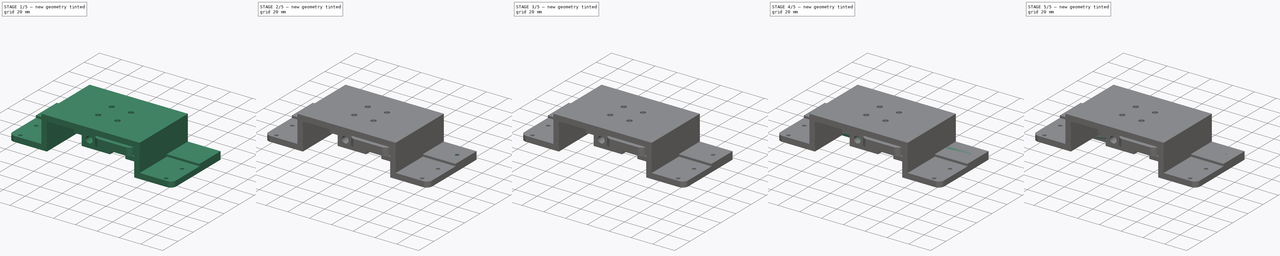
[diagram: build sequence overview — one tinted view per stage of 5, left to right]
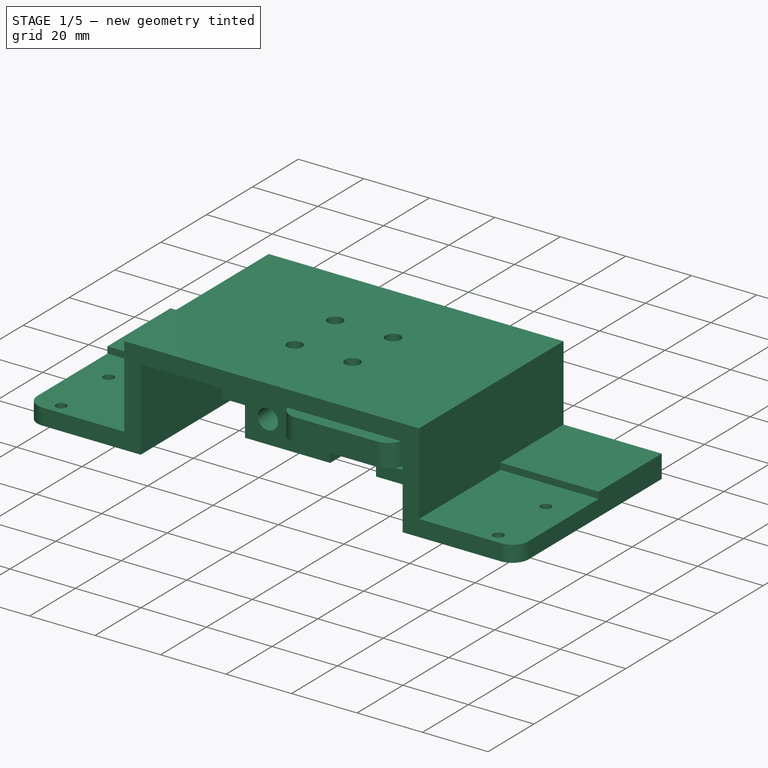
[diagram: stage 1 of 5 — iso view after this stage's code; geometry added in this stage tinted green]
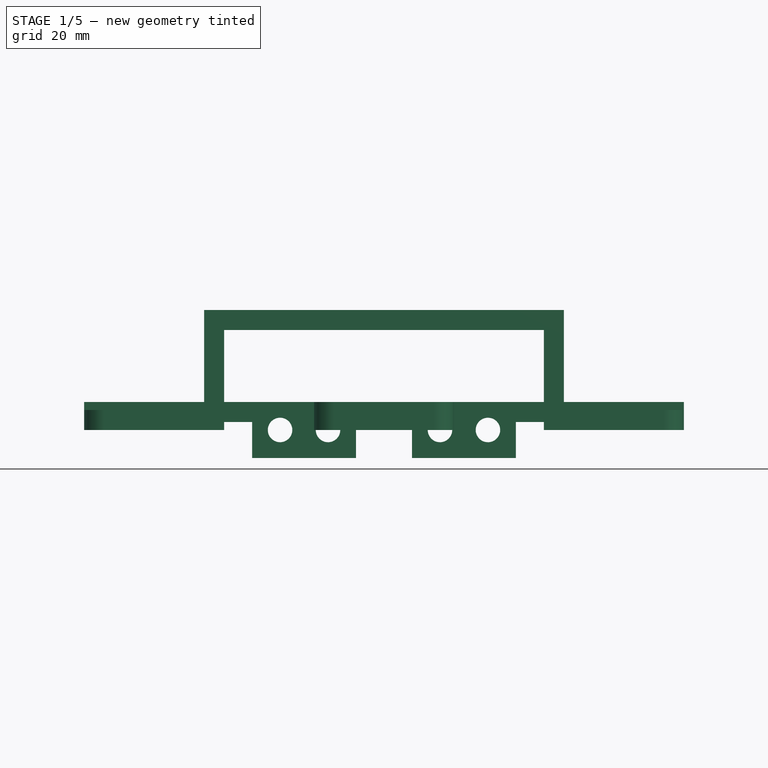
[diagram: stage 1 of 5 — front view after this stage's code; geometry added in this stage tinted green]
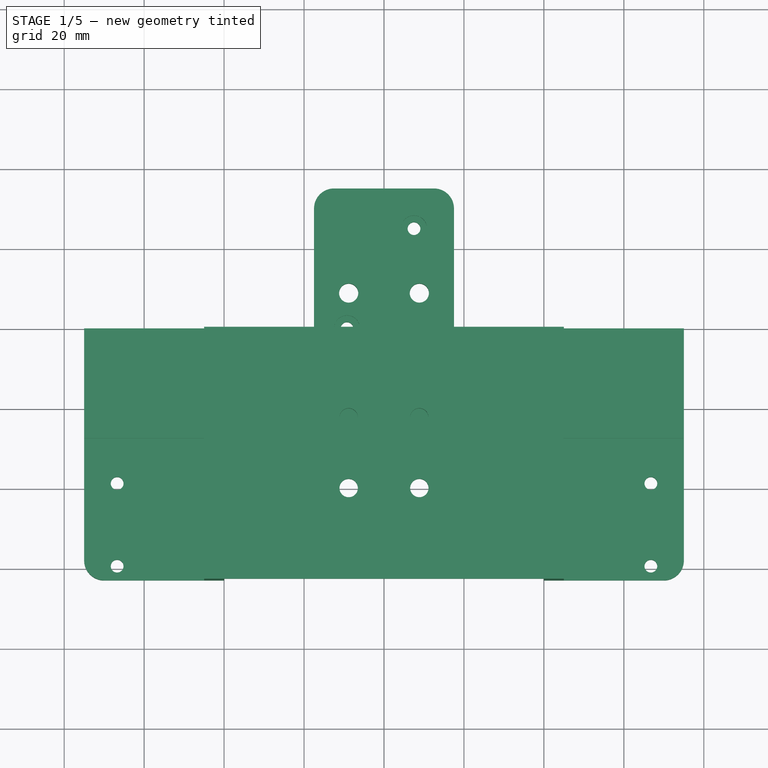
[diagram: stage 1 of 5 — top view after this stage's code; geometry added in this stage tinted green]
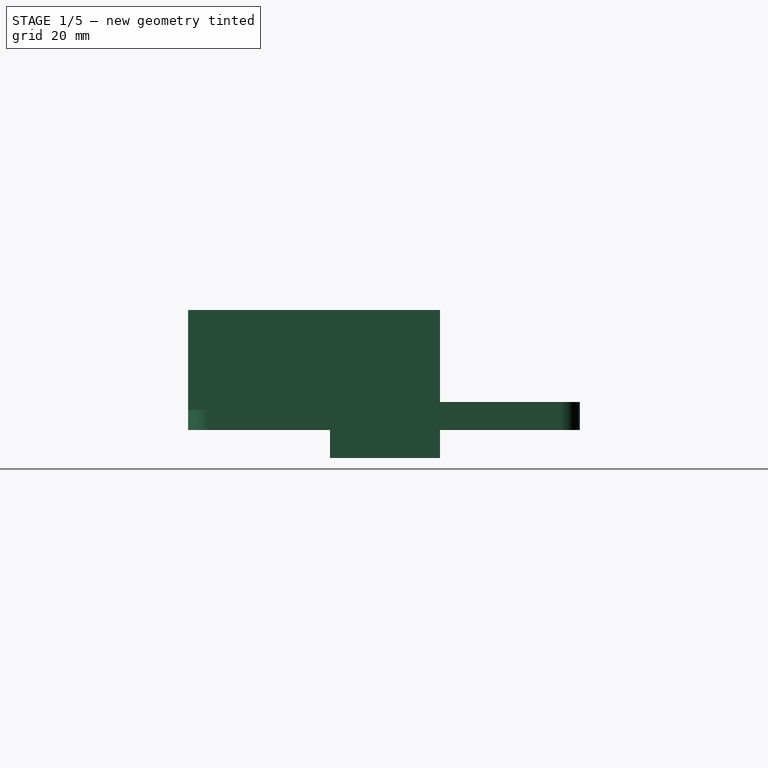
[diagram: stage 1 of 5 — right view after this stage's code; geometry added in this stage tinted green]
FCSTD DOCUMENT  (FreeCAD 1.0R39109 (Git))
Label: emaxx-kybernetes-chassis-blocks
License: All rights reserved
LicenseURL: http://en.wikipedia.org/wiki/All_rights_reserved
objects: Sketcher::SketchObject×42, PartDesign::Pocket×33, PartDesign::Pad×9, PartDesign::Body×7, App::Part×7, PartDesign::Fillet×5, Spreadsheet::Sheet×1
note: 232 computed .brp shape members not serialized (recipe doc carries the construction recipe); baked Part::Feature solids carry a one-line shape summary decoded from their .brp

FEATURE [PartDesign::Body] Body003  label="RearPlateBody"
  AllowCompound = false
  Group = -> [Sketch034,Pad004,Sketch,Pocket,Sketch035,Pocket021,Sketch036,Pocket022,Sketch037,Pad005,Sketch038,Pocket023,Sketch039,Pocket024,Sketch040,Pocket025,Sketch041,Pocket026,Fillet,Fillet001]
  Origin = -> Origin008
  Tip = -> Fillet001
FEATURE [App::Part] Part003  label="rear-plate"
  Group = -> [Body003]
  Origin = -> Origin007
  Placement = pos=(0,77,0) rot=(0,0,1;0rad)
FEATURE [Sketcher::SketchObject] Sketch042  label="FrontPlateHullSketch"
  ArcFitTolerance = 0
  AttachmentSupport = -> [XZ_Plane010]
  FullyConstrained = true
  MakeInternals = false
  MapMode = 5
  Placement = pos=(0,0,0) rot=(1,0,0;1.5708rad)
  expr: Constraints[10] = <<parameters>>.chassis_rod_diameter
  expr: Constraints[11] = <<parameters>>.chassis_rod_diameter
  expr: Constraints[13] = <<parameters>>.chassis_rod_diameter
  expr: Constraints[14] = <<parameters>>.chassis_rod_diameter
  expr: Constraints[16] = <<parameters>>.chassis_rod_diameter / 2 + <<parameters>>.chassis_rod_margin
  expr: Constraints[19] = <<parameters>>.chassis_rod_diameter / 2 + <<parameters>>.chassis_rod_margin - <<parameters>>.chassis_plate_thickness
  expr: Constraints[22] = <<parameters>>.chassis_plate_thickness
  expr: Constraints[33] = <<parameters>>.chassis_plate_width / 2
  expr: Constraints[34] = <<parameters>>.chassis_plate_width / 2
  expr: Constraints[35] = <<parameters>>.chassis_rod_diameter / 2 + <<parameters>>.chassis_rod_margin
  expr: Constraints[36] = <<parameters>>.chassis_rod_diameter / 2 + <<parameters>>.chassis_rod_margin
  expr: Constraints[42] = <<parameters>>.chassis_rod_diameter / 2 + <<parameters>>.chassis_rod_margin
  expr: Constraints[43] = <<parameters>>.chassis_rod_diameter / 2 + <<parameters>>.chassis_rod_margin
  expr: Constraints[4] = <<parameters>>.chassis_rod_diameter + <<parameters>>.hole_expansion / 2
  expr: Constraints[5] = <<parameters>>.chassis_rod_diameter + <<parameters>>.hole_expansion / 2
  expr: Constraints[6] = <<parameters>>.chassis_rod_diameter + <<parameters>>.hole_expansion / 2
  expr: Constraints[7] = <<parameters>>.chassis_rod_diameter + <<parameters>>.hole_expansion / 2
  sketch-geometry (18):
    g0: Circle CenterX=-14 CenterY=0 CenterZ=0 NormalX=0 NormalY=0 NormalZ=1 AngleXU=0 Radius=3.0625
    g1: Circle CenterX=14 CenterY=0 CenterZ=0 NormalX=0 NormalY=0 NormalZ=1 AngleXU=0 Radius=3.0625
    g2: Circle CenterX=-26 CenterY=0 CenterZ=0 NormalX=0 NormalY=0 NormalZ=1 AngleXU=0 Radius=3.0625
    g3: Circle CenterX=26 CenterY=0 CenterZ=0 NormalX=0 NormalY=0 NormalZ=1 AngleXU=0 Radius=3.0625
    g4: GeomPoint [constr] X=20 Y=0 Z=0
    g5: GeomPoint [constr] X=-20 Y=0 Z=0
    g6: LineSegment StartX=33 StartY=-7 StartZ=0 EndX=33 EndY=2 EndZ=0
    g7: LineSegment StartX=-33 StartY=-7 StartZ=0 EndX=-33 EndY=2 EndZ=0
    g8: LineSegment StartX=-75 StartY=7 StartZ=0 EndX=75 EndY=7 EndZ=0
    g9: LineSegment StartX=-75 StartY=7 StartZ=0 EndX=-75 EndY=2 EndZ=0
    g10: LineSegment StartX=75 StartY=7 StartZ=0 EndX=75 EndY=2 EndZ=0
    g11: LineSegment StartX=-75 StartY=2 StartZ=0 EndX=-33 EndY=2 EndZ=0
    g12: LineSegment StartX=33 StartY=2 StartZ=0 EndX=75 EndY=2 EndZ=0
    g13: LineSegment StartX=-33 StartY=-7 StartZ=0 EndX=-7 EndY=-7 EndZ=0
    g14: LineSegment StartX=33 StartY=-7 StartZ=0 EndX=7 EndY=-7 EndZ=0
    g15: LineSegment StartX=-7 StartY=-7 StartZ=0 EndX=-7 EndY=2 EndZ=0
    g16: LineSegment StartX=7 StartY=-7 StartZ=0 EndX=7 EndY=2 EndZ=0
    g17: LineSegment StartX=-7 StartY=2 StartZ=0 EndX=7 EndY=2 EndZ=0
  constraints (52):
    c: Horizontal(g2,g0)
    c: Horizontal(g0,g-1)
    c: Horizontal(g1,g-1)
    c: Horizontal(g3,g1)
    c: Diameter(g2) = 6.125
    c: Diameter(g0) = 6.125
    c: Diameter(g1) = 6.125
    c: Diameter(g3) = 6.125
    c: PointOnObject(g4,g-1)
    c: PointOnObject(g5,g-1)
    c: DistanceX(g2,g5) = 6
    c: DistanceX(g5,g0) = 6
    c: DistanceX(g5,g-1) = 20
    c: DistanceX(g1,g4) = 6
    c: DistanceX(g4,g3) = 6
    c: DistanceX(g-1,g4) = 20
    c: DistanceY(g7,g2) = 7
    c: Vertical(g6)
    c: Vertical(g7)
    c: DistanceY(g2,g7) = 2
    c: Horizontal(g7,g6)
    c: Horizontal(g8)
    c: DistanceY(g7,g8) = 5
    c: Coincident(g9,g8)
    c: Vertical(g9)
    c: Coincident(g10,g8)
    c: Vertical(g10)
    c: Horizontal(g10,g6)
    c: Horizontal(g7,g9)
    c: Coincident(g11,g9)
    c: Coincident(g11,g7)
    c: Coincident(g12,g6)
    c: Coincident(g12,g10)
    c: DistanceX(g8,g-1) = 75
    c: DistanceX(g-1,g8) = 75
    c: DistanceX(g7,g2) = 7
    c: DistanceX(g3,g6) = 7
    c: Horizontal(g6,g7)
    c: Coincident(g13,g7)
    c: Horizontal(g13)
    c: Coincident(g14,g6)
    c: Horizontal(g14)
    c: DistanceX(g0,g13) = 7
    c: DistanceX(g14,g1) = 7
    c: Coincident(g15,g13)
    c: Vertical(g15)
    c: Coincident(g16,g14)
    c: Vertical(g16)
    c: Horizontal(g16,g6)
    c: Horizontal(g15,g7)
    c: Coincident(g17,g15)
    c: Coincident(g17,g16)
FEATURE [PartDesign::Pad] Pad006  label="FrontPlateHull"
  Direction = (0,-1,2e-16)
  Length = 27.5
  Length2 = 10
  Placement = pos=(0,0,0) rot=(1,0,0;1.5708rad)
  Profile = -> Sketch042
  ReferenceAxis = -> Sketch042 [N_Axis]
  Suppressed = false
  Type = 0
  expr: Length = <<parameters>>.front_plate_length
FEATURE [PartDesign::Body] Body004  label="FrontPlateBody"
  AllowCompound = false
  Group = -> [Sketch042,Pad006,Sketch043,Sketch045,Pocket027,Pocket028,Sketch046,Pocket029,Sketch047,Pad007,Sketch048,Pocket030,Sketch049,Pocket031,Sketch050,Pocket032,Fillet002]
  Origin = -> Origin010
  Tip = -> Fillet002
FEATURE [App::Part] Part004  label="front-plate"
  Group = -> [Body004]
  Origin = -> Origin009
  Placement = pos=(0,-30,0) rot=(0,0,1;0rad)
FEATURE [Sketcher::SketchObject] Sketch051
  ArcFitTolerance = 1e-06
  AttachmentSupport = -> [XZ_Plane012]
  FullyConstrained = true
  MakeInternals = false
  MapMode = 5
  Placement = pos=(0,0,0) rot=(1,0,0;1.5708rad)
  expr: Constraints[29] = <<parameters>>.chassis_plate_width
  expr: Constraints[30] = <<parameters>>.chassis_plate_thickness
  expr: Constraints[31] = <<parameters>>.chassis_plate_thickness
  expr: Constraints[32] = <<parameters>>.chassis_plate_thickness
  expr: Constraints[33] = <<parameters>>.chassis_plate_width / 2
  expr: Constraints[35] = <<parameters>>.chassis_plate_thickness
  sketch-geometry (12):
    g0: LineSegment StartX=-75 StartY=0 StartZ=0 EndX=-75 EndY=5 EndZ=0
    g1: LineSegment StartX=-75 StartY=5 StartZ=0 EndX=-45 EndY=5 EndZ=0
    g2: LineSegment StartX=-45 StartY=5 StartZ=0 EndX=-45 EndY=30 EndZ=0
    g3: LineSegment StartX=-45 StartY=30 StartZ=0 EndX=45 EndY=30 EndZ=0
    g4: LineSegment StartX=45 StartY=30 StartZ=0 EndX=45 EndY=5 EndZ=0
    g5: LineSegment StartX=45 StartY=5 StartZ=0 EndX=75 EndY=5 EndZ=0
    g6: LineSegment StartX=75 StartY=5 StartZ=0 EndX=75 EndY=0 EndZ=0
    g7: LineSegment StartX=-75 StartY=0 StartZ=0 EndX=-40 EndY=0 EndZ=0
    g8: LineSegment StartX=-40 StartY=0 StartZ=0 EndX=-40 EndY=25 EndZ=0
    g9: LineSegment StartX=-40 StartY=25 StartZ=0 EndX=40 EndY=25 EndZ=0
    g10: LineSegment StartX=40 StartY=25 StartZ=0 EndX=40 EndY=0 EndZ=0
    g11: LineSegment StartX=40 StartY=0 StartZ=0 EndX=75 EndY=0 EndZ=0
  constraints (36):
    c: PointOnObject(g0,g-1)
    c: Vertical(g0)
    c: Coincident(g0,g1)
    c: Horizontal(g1)
    c: Coincident(g1,g2)
    c: Vertical(g2)
    c: Coincident(g2,g3)
    c: Horizontal(g3)
    c: Coincident(g3,g4)
    c: Vertical(g4)
    c: Coincident(g4,g5)
    c: Horizontal(g5)
    c: Coincident(g5,g6)
    c: PointOnObject(g6,g-1)
    c: Vertical(g6)
    c: Coincident(g7,g0)
    c: PointOnObject(g7,g-1)
    c: Coincident(g8,g7)
    c: Vertical(g8)
    c: Coincident(g9,g8)
    c: Horizontal(g9)
    c: Coincident(g10,g9)
    c: Vertical(g10)
    c: Coincident(g11,g10)
    c: Coincident(g11,g6)
    c: Horizontal(g11)
    c: DistanceX(g8,g9) = 80
    c: DistanceX(g8,g-1) = 40
    c: Distance(g-1,g9) = 25
    c: Distance(g6,g0) = 150
    c: Distance(g5,g6) = 5
    c: DistanceY(g9,g3) = 5
    c: DistanceX(g10,g4) = 5
    c: DistanceX(g0,g-1) = 75
    c: Horizontal(g4,g1)
    c: Distance(g8,g2) = 5
FEATURE [PartDesign::Pad] Pad008
  Direction = (0,-1,2e-16)
  Length = 63
  Length2 = 10
  Placement = pos=(0,0,0) rot=(1,0,0;1.5708rad)
  Profile = -> Sketch051
  ReferenceAxis = -> Sketch051 [N_Axis]
  Suppressed = false
  Type = 0
FEATURE [PartDesign::Fillet] Fillet003
  Base = -> Pad008 [Edge22,Edge4]
  BaseFeature = -> Pad008
  Placement = pos=(0,0,0) rot=(1,0,0;1.5708rad)
  Radius = 5
  SupportTransform = false
  Suppressed = false
  UseAllEdges = false
FEATURE [Sketcher::SketchObject] Sketch052
  ArcFitTolerance = 1e-06
  AttachmentSupport = -> [Fillet003]
  FullyConstrained = true
  MakeInternals = false
  MapMode = 5
  Placement = pos=(0,1.1e-15,5) rot=(0,0,1;3.14159rad)
  expr: Constraints[10] = <<parameters>>.chassis_plate_bolt_diameter
  expr: Constraints[11] = <<parameters>>.chassis_plate_bolt_diameter
  expr: Constraints[12] = <<parameters>>.rear_plate_length / 2
  expr: Constraints[13] = <<parameters>>.rear_plate_length / 2 + <<parameters>>.chassis_post_diameter / 2 + <<parameters>>.chassis_post_hole_to_edge
  expr: Constraints[17] = <<parameters>>.chassis_post_diameter / 2 + <<parameters>>.chassis_post_hole_to_edge + 8.25 mm + 1.2 mm
  expr: Constraints[4] = <<parameters>>.chassis_plate_width / 2 - (<<parameters>>.chassis_plate_nut_diameter / 2 + <<parameters>>.chassis_plate_thickness)
  expr: Constraints[5] = <<parameters>>.chassis_plate_width / 2 - (<<parameters>>.chassis_plate_nut_diameter / 2 + <<parameters>>.chassis_plate_thickness)
  expr: Constraints[6] = <<parameters>>.chassis_plate_bolt_diameter
  expr: Constraints[7] = <<parameters>>.chassis_plate_bolt_diameter
  expr: Constraints[8] = <<parameters>>.chassis_plate_bolt_diameter
  expr: Constraints[9] = <<parameters>>.chassis_plate_bolt_diameter
  sketch-geometry (6):
    g0: Circle CenterX=-66.75 CenterY=13.75 CenterZ=0 NormalX=0 NormalY=0 NormalZ=1 AngleXU=0 Radius=1.6
    g1: Circle CenterX=-66.75 CenterY=38.75 CenterZ=0 NormalX=0 NormalY=0 NormalZ=1 AngleXU=0 Radius=1.6
    g2: Circle CenterX=-66.75 CenterY=59.45 CenterZ=0 NormalX=0 NormalY=0 NormalZ=1 AngleXU=0 Radius=1.6
    g3: Circle CenterX=66.75 CenterY=59.45 CenterZ=0 NormalX=0 NormalY=0 NormalZ=1 AngleXU=0 Radius=1.6
    g4: Circle CenterX=66.75 CenterY=38.75 CenterZ=0 NormalX=0 NormalY=0 NormalZ=1 AngleXU=0 Radius=1.6
    g5: Circle CenterX=66.75 CenterY=13.75 CenterZ=0 NormalX=0 NormalY=0 NormalZ=1 AngleXU=0 Radius=1.6
  constraints (18):
    c: Vertical(g5,g4)
    c: Vertical(g4,g3)
    c: Vertical(g1,g2)
    c: Vertical(g0,g1)
    c: DistanceX(g0,g-1) = 66.75
    c: DistanceX(g-1,g5) = 66.75
    c: Diameter(g0) = 3.2
    c: Diameter(g1) = 3.2
    c: Diameter(g2) = 3.2
    c: Diameter(g3) = 3.2
    c: Diameter(g4) = 3.2
    c: Diameter(g5) = 3.2
    c: DistanceY(g-1,g0) = 13.75
    c: DistanceY(g0,g1) = 25
    c: Horizontal(g5,g0)
    c: Horizontal(g4,g1)
    c: Horizontal(g3,g2)
    c: DistanceY(g1,g2) = 20.7
FEATURE [PartDesign::Pocket] Pocket033
  BaseFeature = -> Fillet003
  Direction = (0,0,-1)
  Length = 5
  Length2 = 5
  Placement = pos=(0,0,0) rot=(1,0,0;1.5708rad)
  Profile = -> Sketch052
  ReferenceAxis = -> Sketch052 [N_Axis]
  Suppressed = false
  Type = 0
  expr: Length = <<parameters>>.chassis_plate_thickness
FEATURE [Sketcher::SketchObject] Sketch053
  ArcFitTolerance = 1e-06
  AttachmentSupport = -> [Pocket033]
  ExternalGeometry = -> [Pocket033]
  FullyConstrained = true
  MakeInternals = false
  MapMode = 5
  Placement = pos=(0,6.7e-15,30) rot=(0,0,1;3.14159rad)
  expr: Constraints[14] = 63 mm / 2
  sketch-geometry (6):
    g0: Circle CenterX=8.83883 CenterY=40.3388 CenterZ=0 NormalX=0 NormalY=0 NormalZ=1 AngleXU=0 Radius=2.3
    g1: Circle CenterX=8.83883 CenterY=22.6612 CenterZ=0 NormalX=0 NormalY=0 NormalZ=1 AngleXU=0 Radius=2.3
    g2: Circle CenterX=-8.83883 CenterY=22.6612 CenterZ=0 NormalX=0 NormalY=0 NormalZ=1 AngleXU=0 Radius=2.3
    g3: Circle CenterX=-8.83883 CenterY=40.3388 CenterZ=0 NormalX=0 NormalY=0 NormalZ=1 AngleXU=0 Radius=2.3
    g4: LineSegment [constr] StartX=-8.83883 StartY=22.6612 StartZ=0 EndX=8.83883 EndY=40.3388 EndZ=0
    g5: GeomPoint [constr] X=0 Y=31.5 Z=0
  constraints (15):
    c: Distance(g2,g0) = 25
    c: Coincident(g4,g2)
    c: Coincident(g4,g0)
    c: Angle(g-1,g4) = 0.785398
    c: Vertical(g3,g2)
    c: Vertical(g1,g0)
    c: Horizontal(g1,g2)
    c: Horizontal(g0,g3)
    c: Symmetric(g4,g4,g5)
    c: PointOnObject(g5,g-2)
    c: Diameter(g3) = 4.6
    c: Diameter(g0) = 4.6
    c: Diameter(g1) = 4.6
    c: Diameter(g2) = 4.6
    c: DistanceY(g-1,g5) = 31.5
FEATURE [PartDesign::Pocket] Pocket034
  BaseFeature = -> Pocket033
  Direction = (0,0,-1)
  Length = 5
  Length2 = 5
  Placement = pos=(0,0,0) rot=(1,0,0;1.5708rad)
  Profile = -> Sketch053
  ReferenceAxis = -> Sketch053 [N_Axis]
  Suppressed = false
  Type = 0
  expr: Length = <<parameters>>.chassis_plate_thickness
FEATURE [PartDesign::Body] Body005  label="insta360-mount-body"
  AllowCompound = false
  Group = -> [Sketch051,Pad008,Fillet003,Sketch052,Pocket033,Sketch053,Pocket034]
  Origin = -> Origin012
  Tip = -> Pocket034
FEATURE [App::Part] Part005  label="insta360-mount"
  Group = -> [Body005]
  Origin = -> Origin011
  Placement = pos=(0,77,7) rot=(0,0,1;0rad)
  expr: .Placement.Base.z = <<parameters>>.chassis_plate_thickness + <<parameters>>.chassis_rod_diameter / 2 + <<parameters>>.chassis_rod_margin - <<parameters>>.chassis_plate_thickness
FEATURE [Sketcher::SketchObject] Sketch054
  ArcFitTolerance = 1e-06
  AttachmentSupport = -> [XY_Plane014]
  FullyConstrained = true
  MakeInternals = false
  MapMode = 5
  sketch-geometry (5):
    g0: LineSegment StartX=-17.5 StartY=-35 StartZ=0 EndX=17.5 EndY=-35 EndZ=0
    g1: LineSegment StartX=17.5 StartY=-35 StartZ=0 EndX=17.5 EndY=35 EndZ=0
    g2: LineSegment StartX=17.5 StartY=35 StartZ=0 EndX=-17.5 EndY=35 EndZ=0
    g3: LineSegment StartX=-17.5 StartY=35 StartZ=0 EndX=-17.5 EndY=-35 EndZ=0
    g4: GeomPoint [constr] X=0 Y=0 Z=0
  constraints (12):
    c: Coincident(g0,g1)
    c: Coincident(g1,g2)
    c: Coincident(g2,g3)
    c: Coincident(g3,g0)
    c: Horizontal(g0)
    c: Horizontal(g2)
    c: Vertical(g1)
    c: Vertical(g3)
    c: Symmetric(g2,g0,g4)
    c: Distance(g1,g3) = 35
    c: Distance(g0,g2) = 70
    c: Coincident(g4,g-1)
FEATURE [PartDesign::Pad] Pad009
  Direction = (0,0,1)
  Length = 7
  Length2 = 10
  Profile = -> Sketch054
  ReferenceAxis = -> Sketch054 [N_Axis]
  Suppressed = false
  Type = 0
  expr: Length = <<parameters>>.chassis_plate_thickness + 2 mm
FEATURE [Sketcher::SketchObject] Sketch055
  ArcFitTolerance = 1e-06
  AttachmentSupport = -> [Pad009]
  ExternalGeometry = -> [Pad009]
  FullyConstrained = true
  MakeInternals = false
  MapMode = 5
  Placement = pos=(0,0,7) rot=(0,0,1;0rad)
  expr: Constraints[17] = <<parameters>>.chassis_plate_bolt_diameter
  expr: Constraints[18] = <<parameters>>.chassis_plate_bolt_diameter
  expr: Constraints[19] = <<parameters>>.chassis_plate_bolt_diameter
  expr: Constraints[22] = <<parameters>>.chassis_plate_width / 2 - 66.75 mm
  sketch-geometry (9):
    g0: Circle CenterX=7.5 CenterY=25 CenterZ=0 NormalX=0 NormalY=0 NormalZ=1 AngleXU=0 Radius=1.6
    g1: Circle CenterX=-9.25 CenterY=0 CenterZ=0 NormalX=0 NormalY=0 NormalZ=1 AngleXU=0 Radius=1.6
    g2: Circle CenterX=7.5 CenterY=-25 CenterZ=0 NormalX=0 NormalY=0 NormalZ=1 AngleXU=0 Radius=1.6
    g3: Circle CenterX=-8.83883 CenterY=8.83883 CenterZ=0 NormalX=0 NormalY=0 NormalZ=1 AngleXU=0 Radius=2.4
    g4: Circle CenterX=8.83883 CenterY=8.83883 CenterZ=0 NormalX=0 NormalY=0 NormalZ=1 AngleXU=0 Radius=2.4
    g5: Circle CenterX=-8.83883 CenterY=-8.83883 CenterZ=0 NormalX=0 NormalY=0 NormalZ=1 AngleXU=0 Radius=2.4
    g6: Circle CenterX=8.83883 CenterY=-8.83883 CenterZ=0 NormalX=0 NormalY=0 NormalZ=1 AngleXU=0 Radius=2.4
    g7: LineSegment [constr] StartX=-8.83883 StartY=8.83883 StartZ=0 EndX=8.83883 EndY=-8.83883 EndZ=0
    g8: LineSegment [constr] StartX=-8.83883 StartY=-8.83883 StartZ=0 EndX=8.83883 EndY=8.83883 EndZ=0
  constraints (25):
    c: PointOnObject(g1,g-1)
    c: Diameter(g6) = 4.8
    c: Diameter(g5) = 4.8
    c: Diameter(g3) = 4.8
    c: Diameter(g4) = 4.8
    c: Vertical(g3,g5)
    c: Vertical(g6,g4)
    c: Horizontal(g3,g4)
    c: Horizontal(g6,g5)
    c: Distance(g3,g6) = 25
    c: Coincident(g7,g3)
    c: Coincident(g7,g6)
    c: Angle(g7,g-1) = 0.785398
    c: PointOnObject(g-1,g7)
    c: Coincident(g8,g5)
    c: Coincident(g8,g4)
    c: PointOnObject(g-1,g8)
    c: Diameter(g1) = 3.2
    c: Diameter(g0) = 3.2
    c: Diameter(g2) = 3.2
    c: DistanceY(g2,g0) = 50
    c: DistanceX(g1,g0) = 16.75
    c: Distance(g1,g-3) = 8.25
    c: DistanceY(g-1,g0) = 25
    c: Vertical(g2,g0)
FEATURE [PartDesign::Pocket] Pocket035
  BaseFeature = -> Pad009
  Direction = (0,0,-1)
  Length = 10
  Length2 = 5
  Profile = -> Sketch055
  ReferenceAxis = -> Sketch055 [N_Axis]
  Suppressed = false
  Type = 0
FEATURE [Sketcher::SketchObject] Sketch056
  ArcFitTolerance = 1e-06
  AttachmentSupport = -> [Pocket035]
  ExternalGeometry = -> [Pocket035]
  FullyConstrained = true
  MakeInternals = false
  MapMode = 5
  Placement = pos=(0,0,7) rot=(0,0,1;0rad)
  sketch-geometry (3):
    g0: Circle CenterX=-9.25 CenterY=0 CenterZ=0 NormalX=0 NormalY=0 NormalZ=1 AngleXU=0 Radius=3.25
    g1: Circle CenterX=7.5 CenterY=25 CenterZ=0 NormalX=0 NormalY=0 NormalZ=1 AngleXU=0 Radius=3.25
    g2: Circle CenterX=7.5 CenterY=-25 CenterZ=0 NormalX=0 NormalY=0 NormalZ=1 AngleXU=0 Radius=3.25
  constraints (6):
    c: Coincident(g0,g-3)
    c: Coincident(g1,g-4)
    c: Coincident(g2,g-5)
    c: Diameter(g0) = 6.5
    c: Diameter(g1) = 6.5
    c: Diameter(g2) = 6.5
FEATURE [PartDesign::Pocket] Pocket036
  BaseFeature = -> Pocket035
  Direction = (0,0,-1)
  Length = 2.5
  Length2 = 5
  Profile = -> Sketch056
  ReferenceAxis = -> Sketch056 [N_Axis]
  Suppressed = false
  Type = 0
FEATURE [PartDesign::Fillet] Fillet004
  Base = -> Pocket036 [Edge1,Edge2,Edge5,Edge8]
  BaseFeature = -> Pocket036
  Radius = 5
  SupportTransform = false
  Suppressed = false
  UseAllEdges = false
FEATURE [PartDesign::Body] Body006  label="insta360-mount-2-body"
  AllowCompound = false
  Group = -> [Sketch054,Pad009,Sketch055,Pocket035,Sketch056,Pocket036,Fillet004]
  Origin = -> Origin014
  Tip = -> Fillet004
FEATURE [App::Part] Part006  label="insta360-mount-2"
  Group = -> [Body006]
  Origin = -> Origin013
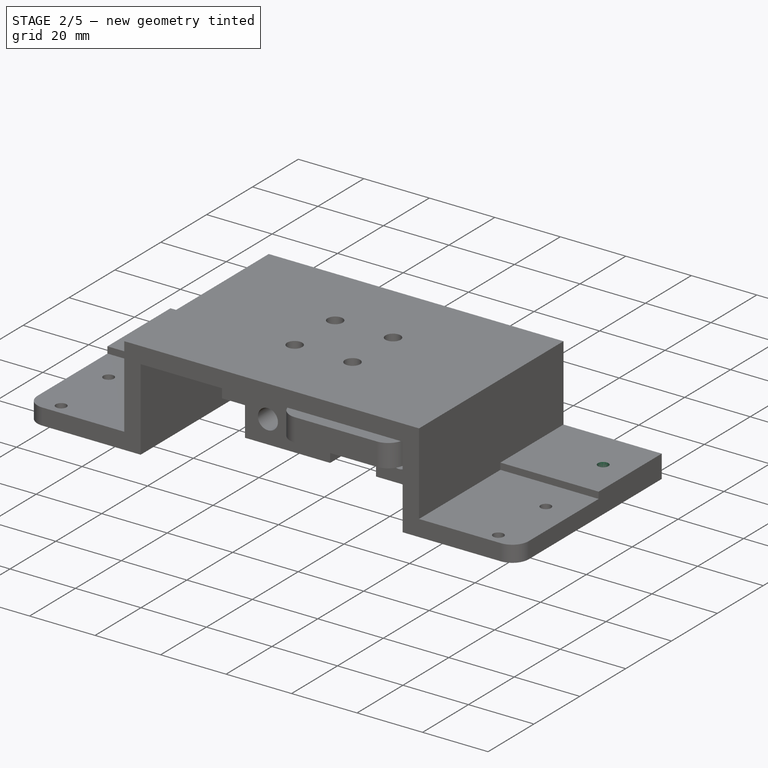
[diagram: stage 2 of 5 — iso view after this stage's code; geometry added in this stage tinted green]
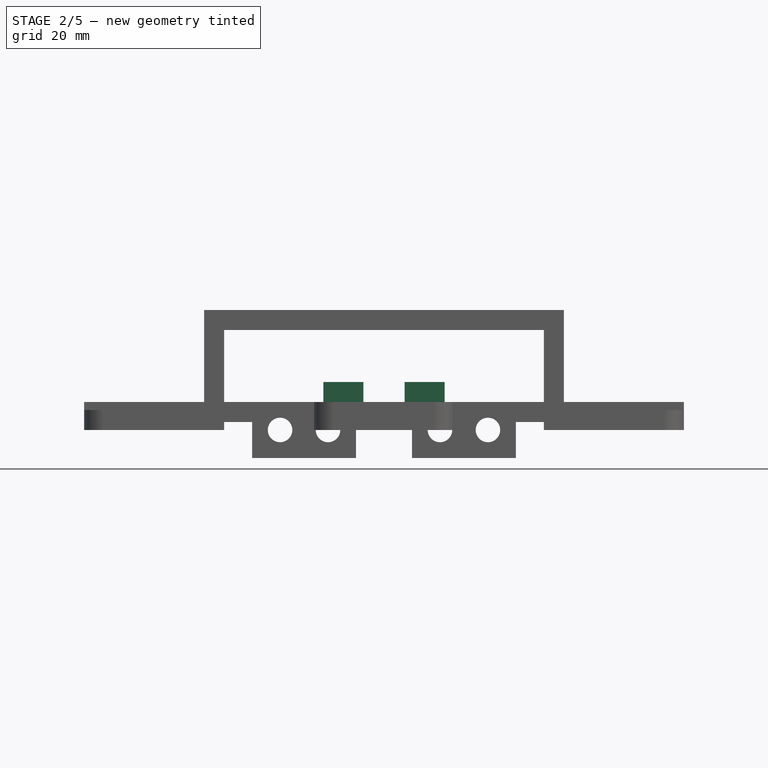
[diagram: stage 2 of 5 — front view after this stage's code; geometry added in this stage tinted green]
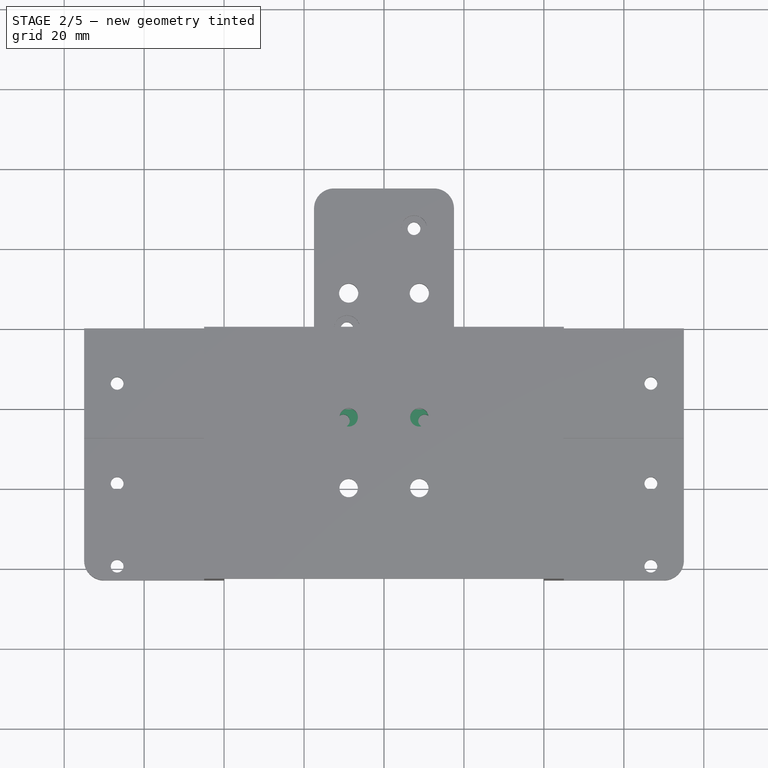
[diagram: stage 2 of 5 — top view after this stage's code; geometry added in this stage tinted green]
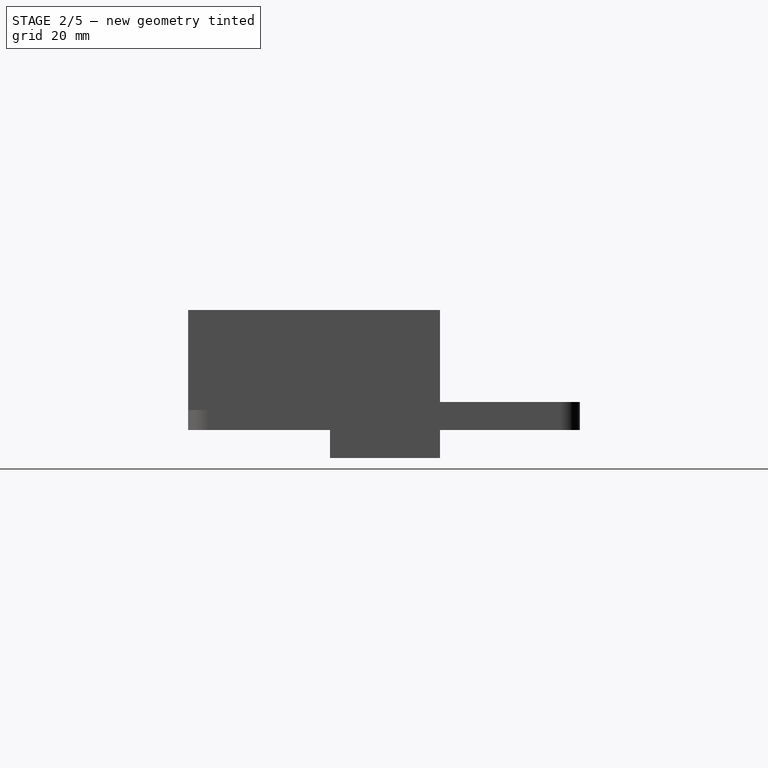
[diagram: stage 2 of 5 — right view after this stage's code; geometry added in this stage tinted green]
FEATURE [PartDesign::Body] Body  label="SpacerBody"
  AllowCompound = false
  Group = -> [Sketch033,Pad]
  Origin = -> Origin006
  Tip = -> Pad
FEATURE [App::Part] Part  label="spacer"
  Group = -> [Body]
  Origin = -> Origin
  Placement = pos=(0,27,0) rot=(0,0,1;0rad)
FEATURE [Sketcher::SketchObject] Sketch034  label="RearPlateHullSketch"
  ArcFitTolerance = 0
  AttachmentSupport = -> [XZ_Plane008]
  FullyConstrained = true
  MakeInternals = false
  MapMode = 5
  Placement = pos=(0,0,0) rot=(1,0,0;1.5708rad)
  expr: Constraints[10] = <<parameters>>.chassis_rod_diameter
  expr: Constraints[11] = <<parameters>>.chassis_rod_diameter
  expr: Constraints[13] = <<parameters>>.chassis_rod_diameter
  expr: Constraints[14] = <<parameters>>.chassis_rod_diameter
  expr: Constraints[16] = <<parameters>>.chassis_rod_diameter / 2 + <<parameters>>.chassis_rod_margin
  expr: Constraints[19] = <<parameters>>.chassis_rod_diameter / 2 + <<parameters>>.chassis_rod_margin - <<parameters>>.chassis_plate_thickness
  expr: Constraints[22] = <<parameters>>.chassis_plate_thickness
  expr: Constraints[33] = <<parameters>>.chassis_plate_width / 2
  expr: Constraints[34] = <<parameters>>.chassis_plate_width / 2
  expr: Constraints[35] = <<parameters>>.chassis_rod_diameter / 2 + <<parameters>>.chassis_rod_margin
  expr: Constraints[36] = <<parameters>>.chassis_rod_diameter / 2 + <<parameters>>.chassis_rod_margin
  expr: Constraints[42] = <<parameters>>.chassis_rod_diameter / 2 + <<parameters>>.chassis_rod_margin
  expr: Constraints[43] = <<parameters>>.chassis_rod_diameter / 2 + <<parameters>>.chassis_rod_margin
  expr: Constraints[4] = <<parameters>>.chassis_rod_diameter + <<parameters>>.hole_expansion / 2
  expr: Constraints[5] = <<parameters>>.chassis_rod_diameter + <<parameters>>.hole_expansion / 2
  expr: Constraints[6] = <<parameters>>.chassis_rod_diameter + <<parameters>>.hole_expansion / 2
  expr: Constraints[7] = <<parameters>>.chassis_rod_diameter + <<parameters>>.hole_expansion / 2
  sketch-geometry (18):
    g0: Circle CenterX=-14 CenterY=0 CenterZ=0 NormalX=0 NormalY=0 NormalZ=1 AngleXU=0 Radius=3.0625
    g1: Circle CenterX=14 CenterY=0 CenterZ=0 NormalX=0 NormalY=0 NormalZ=1 AngleXU=0 Radius=3.0625
    g2: Circle CenterX=-26 CenterY=0 CenterZ=0 NormalX=0 NormalY=0 NormalZ=1 AngleXU=0 Radius=3.0625
    g3: Circle CenterX=26 CenterY=0 CenterZ=0 NormalX=0 NormalY=0 NormalZ=1 AngleXU=0 Radius=3.0625
    g4: GeomPoint [constr] X=20 Y=0 Z=0
    g5: GeomPoint [constr] X=-20 Y=0 Z=0
    g6: LineSegment StartX=33 StartY=-7 StartZ=0 EndX=33 EndY=2 EndZ=0
    g7: LineSegment StartX=-33 StartY=-7 StartZ=0 EndX=-33 EndY=2 EndZ=0
    g8: LineSegment StartX=-75 StartY=7 StartZ=0 EndX=75 EndY=7 EndZ=0
    g9: LineSegment StartX=-75 StartY=7 StartZ=0 EndX=-75 EndY=2 EndZ=0
    g10: LineSegment StartX=75 StartY=7 StartZ=0 EndX=75 EndY=2 EndZ=0
    g11: LineSegment StartX=-75 StartY=2 StartZ=0 EndX=-33 EndY=2 EndZ=0
    g12: LineSegment StartX=33 StartY=2 StartZ=0 EndX=75 EndY=2 EndZ=0
    g13: LineSegment StartX=-33 StartY=-7 StartZ=0 EndX=-7 EndY=-7 EndZ=0
    g14: LineSegment StartX=33 StartY=-7 StartZ=0 EndX=7 EndY=-7 EndZ=0
    g15: LineSegment StartX=-7 StartY=-7 StartZ=0 EndX=-7 EndY=2 EndZ=0
    g16: LineSegment StartX=7 StartY=-7 StartZ=0 EndX=7 EndY=2 EndZ=0
    g17: LineSegment StartX=-7 StartY=2 StartZ=0 EndX=7 EndY=2 EndZ=0
  constraints (52):
    c: Horizontal(g2,g0)
    c: Horizontal(g0,g-1)
    c: Horizontal(g1,g-1)
    c: Horizontal(g3,g1)
    c: Diameter(g2) = 6.125
    c: Diameter(g0) = 6.125
    c: Diameter(g1) = 6.125
    c: Diameter(g3) = 6.125
    c: PointOnObject(g4,g-1)
    c: PointOnObject(g5,g-1)
    c: DistanceX(g2,g5) = 6
    c: DistanceX(g5,g0) = 6
    c: DistanceX(g5,g-1) = 20
    c: DistanceX(g1,g4) = 6
    c: DistanceX(g4,g3) = 6
    c: DistanceX(g-1,g4) = 20
    c: DistanceY(g7,g2) = 7
    c: Vertical(g6)
    c: Vertical(g7)
    c: DistanceY(g2,g7) = 2
    c: Horizontal(g7,g6)
    c: Horizontal(g8)
    c: DistanceY(g7,g8) = 5
    c: Coincident(g9,g8)
    c: Vertical(g9)
    c: Coincident(g10,g8)
    c: Vertical(g10)
    c: Horizontal(g10,g6)
    c: Horizontal(g7,g9)
    c: Coincident(g11,g9)
    c: Coincident(g11,g7)
    c: Coincident(g12,g6)
    c: Coincident(g12,g10)
    c: DistanceX(g8,g-1) = 75
    c: DistanceX(g-1,g8) = 75
    c: DistanceX(g7,g2) = 7
    c: DistanceX(g3,g6) = 7
    c: Horizontal(g6,g7)
    c: Coincident(g13,g7)
    c: Horizontal(g13)
    c: Coincident(g14,g6)
    c: Horizontal(g14)
    c: DistanceX(g0,g13) = 7
    c: DistanceX(g14,g1) = 7
    c: Coincident(g15,g13)
    c: Vertical(g15)
    c: Coincident(g16,g14)
    c: Vertical(g16)
    c: Horizontal(g16,g6)
    c: Horizontal(g15,g7)
    c: Coincident(g17,g15)
    c: Coincident(g17,g16)
FEATURE [PartDesign::Pad] Pad004  label="RearPlateHull"
  Direction = (0,-1,2e-16)
  Length = 27.5
  Length2 = 10
  Placement = pos=(0,0,0) rot=(1,0,0;1.5708rad)
  Profile = -> Sketch034
  ReferenceAxis = -> Sketch034 [N_Axis]
  Suppressed = false
  Type = 0
  expr: Length = <<parameters>>.rear_plate_length
FEATURE [Sketcher::SketchObject] Sketch  label="RearPlateBoltHolesSketch"
  ArcFitTolerance = 0
  AttachmentSupport = -> [Pad004]
  FullyConstrained = true
  MakeInternals = false
  MapMode = 5
  Placement = pos=(0,1.6e-15,7) rot=(0,0,1;3.14159rad)
  expr: Constraints[1] = <<parameters>>.chassis_plate_bolt_diameter
  expr: Constraints[2] = <<parameters>>.chassis_plate_bolt_diameter
  expr: Constraints[3] = <<parameters>>.rear_plate_length / 2
  expr: Constraints[4] = <<parameters>>.chassis_plate_width / 2 - (<<parameters>>.chassis_plate_nut_diameter / 2 + <<parameters>>.chassis_plate_thickness)
  expr: Constraints[5] = <<parameters>>.chassis_plate_width / 2 - (<<parameters>>.chassis_plate_nut_diameter / 2 + <<parameters>>.chassis_plate_thickness)
  sketch-geometry (2):
    g0: Circle CenterX=-66.75 CenterY=13.75 CenterZ=0 NormalX=0 NormalY=0 NormalZ=1 AngleXU=0 Radius=1.6
    g1: Circle CenterX=66.75 CenterY=13.75 CenterZ=0 NormalX=0 NormalY=0 NormalZ=1 AngleXU=0 Radius=1.6
  constraints (6):
    c: Horizontal(g0,g1)
    c: Diameter(g0) = 3.2
    c: Diameter(g1) = 3.2
    c: DistanceY(g-1,g0) = 13.75
    c: DistanceX(g0,g-1) = 66.75
    c: DistanceX(g-1,g1) = 66.75
FEATURE [PartDesign::Pocket] Pocket  label="RearPlateBoltHoles"
  BaseFeature = -> Pad004
  Direction = (0,0,-1)
  Length = 5
  Length2 = 5
  Placement = pos=(0,0,0) rot=(1,0,0;1.5708rad)
  Profile = -> Sketch
  ReferenceAxis = -> Sketch [N_Axis]
  Suppressed = false
  Type = 0
  expr: Length = <<parameters>>.chassis_plate_thickness
FEATURE [Sketcher::SketchObject] Sketch043  label="FrontPlateBoltHolesSketch"
  ArcFitTolerance = 0
  AttachmentSupport = -> [Pad006]
  FullyConstrained = true
  MakeInternals = false
  MapMode = 5
  Placement = pos=(0,1.6e-15,7) rot=(0,0,1;3.14159rad)
  expr: Constraints[1] = <<parameters>>.chassis_plate_bolt_diameter
  expr: Constraints[2] = <<parameters>>.chassis_plate_bolt_diameter
  expr: Constraints[3] = <<parameters>>.front_plate_length / 2
  expr: Constraints[4] = <<parameters>>.chassis_plate_width / 2 - (<<parameters>>.chassis_plate_nut_diameter / 2 + <<parameters>>.chassis_plate_thickness)
  expr: Constraints[5] = <<parameters>>.chassis_plate_width / 2 - (<<parameters>>.chassis_plate_nut_diameter / 2 + <<parameters>>.chassis_plate_thickness)
  sketch-geometry (2):
    g0: Circle CenterX=-66.75 CenterY=13.75 CenterZ=0 NormalX=0 NormalY=0 NormalZ=1 AngleXU=0 Radius=1.6
    g1: Circle CenterX=66.75 CenterY=13.75 CenterZ=0 NormalX=0 NormalY=0 NormalZ=1 AngleXU=0 Radius=1.6
  constraints (6):
    c: Horizontal(g0,g1)
    c: Diameter(g0) = 3.2
    c: Diameter(g1) = 3.2
    c: DistanceY(g-1,g0) = 13.75
    c: DistanceX(g0,g-1) = 66.75
    c: DistanceX(g-1,g1) = 66.75
FEATURE [PartDesign::Pocket] Pocket027  label="FrontPlateBoltHoles"
  BaseFeature = -> Pad006
  Direction = (0,0,-1)
  Length = 5
  Length2 = 5
  Placement = pos=(0,0,0) rot=(1,0,0;1.5708rad)
  Profile = -> Sketch043
  ReferenceAxis = -> Sketch043 [N_Axis]
  Suppressed = false
  Type = 0
  expr: Length = <<parameters>>.chassis_plate_thickness
FEATURE [Sketcher::SketchObject] Sketch045  label="FrontPlateNutCatchSketch"
  ArcFitTolerance = 0
  AttachmentSupport = -> [Pocket027]
  FullyConstrained = true
  MakeInternals = false
  MapMode = 5
  Placement = pos=(0,4e-16,2) rot=(1,0,0;3.14159rad)
  expr: Constraints[37] = <<parameters>>.chassis_plate_width / 2 - (<<parameters>>.chassis_plate_nut_diameter / 2 + <<parameters>>.chassis_plate_thickness)
  expr: Constraints[38] = <<parameters>>.chassis_plate_width / 2 - (<<parameters>>.chassis_plate_nut_diameter / 2 + <<parameters>>.chassis_plate_thickness)
  expr: Constraints[39] = <<parameters>>.rear_plate_length / 2
  expr: Constraints[40] = <<parameters>>.chassis_plate_nut_diameter
  expr: Constraints[41] = <<parameters>>.chassis_plate_nut_diameter
  sketch-geometry (14):
    g0: LineSegment StartX=-63.5 StartY=13.75 StartZ=0 EndX=-65.125 EndY=16.5646 EndZ=0
    g1: LineSegment StartX=-65.125 StartY=16.5646 StartZ=0 EndX=-68.375 EndY=16.5646 EndZ=0
    g2: LineSegment StartX=-68.375 StartY=16.5646 StartZ=0 EndX=-70 EndY=13.75 EndZ=0
    g3: LineSegment StartX=-70 StartY=13.75 StartZ=0 EndX=-68.375 EndY=10.9354 EndZ=0
    g4: LineSegment StartX=-68.375 StartY=10.9354 StartZ=0 EndX=-65.125 EndY=10.9354 EndZ=0
    g5: LineSegment StartX=-65.125 StartY=10.9354 StartZ=0 EndX=-63.5 EndY=13.75 EndZ=0
    g6: Circle [constr] CenterX=-66.75 CenterY=13.75 CenterZ=0 NormalX=0 NormalY=0 NormalZ=1 AngleXU=0 Radius=3.25
    g7: LineSegment StartX=70 StartY=13.75 StartZ=0 EndX=68.375 EndY=16.5646 EndZ=0
    g8: LineSegment StartX=68.375 StartY=16.5646 StartZ=0 EndX=65.125 EndY=16.5646 EndZ=0
    g9: LineSegment StartX=65.125 StartY=16.5646 StartZ=0 EndX=63.5 EndY=13.75 EndZ=0
    g10: LineSegment StartX=63.5 StartY=13.75 StartZ=0 EndX=65.125 EndY=10.9354 EndZ=0
    g11: LineSegment StartX=65.125 StartY=10.9354 StartZ=0 EndX=68.375 EndY=10.9354 EndZ=0
    g12: LineSegment StartX=68.375 StartY=10.9354 StartZ=0 EndX=70 EndY=13.75 EndZ=0
    g13: Circle [constr] CenterX=66.75 CenterY=13.75 CenterZ=0 NormalX=0 NormalY=0 NormalZ=1 AngleXU=0 Radius=3.25
  constraints (34):
    c: Coincident(g0,g1)
    c: Coincident(g1,g2)
    c: Coincident(g2,g3)
    c: Coincident(g3,g4)
    c: Coincident(g4,g5)
    c: Coincident(g5,g0)
    c: Equal(g0, g1-g5) x5
    c: PointOnObject(g0,g6)
    c: PointOnObject(g1,g6)
    c: PointOnObject(g2,g6)
    c: PointOnObject(g3,g6)
    c: PointOnObject(g4,g6)
    c: PointOnObject(g5,g6)
    c: Coincident(g7,g8)
    c: Coincident(g8,g9)
    c: Coincident(g9,g10)
    c: Coincident(g10,g11)
    c: Coincident(g11,g12)
    c: Coincident(g12,g7)
    c: Equal(g7, g8-g12) x5
    c: PointOnObject(g7,g13)
    c: PointOnObject(g8,g13)
    c: PointOnObject(g9,g13)
    c: PointOnObject(g10,g13)
    c: PointOnObject(g11,g13)
    c: PointOnObject(g12,g13)
    c: Horizontal(g2,g0)
    c: Horizontal(g9,g7)
    c: Horizontal(g13,g6)
    c: DistanceX(g6,g-1) = 66.75
    c: DistanceX(g-1,g13) = 66.75
    c: DistanceY(g-1,g6) = 13.75
    c: DistanceX(g2,g0) = 6.5
    c: DistanceX(g9,g7) = 6.5
FEATURE [PartDesign::Pocket] Pocket028  label="FrontPlateNutCatch"
  BaseFeature = -> Pocket027
  Direction = (0,0,1)
  Length = 2
  Length2 = 5
  Placement = pos=(0,0,0) rot=(1,0,0;1.5708rad)
  Profile = -> Sketch045
  ReferenceAxis = -> Sketch045 [N_Axis]
  Suppressed = false
  Type = 0
  expr: Length = 2 mm
FEATURE [Sketcher::SketchObject] Sketch046  label="FrontPlateRodNutChannelSketch"
  ArcFitTolerance = 0
  AttachmentSupport = -> [Pocket028]
  FullyConstrained = true
  MakeInternals = false
  MapMode = 5
  Placement = pos=(0,1.6e-15,7) rot=(0,0,1;3.14159rad)
  expr: Constraints[16] = <<parameters>>.chassis_rod_diameter + <<parameters>>.chassis_rod_diameter / 2 + <<parameters>>.chassis_rod_margin
  expr: Constraints[17] = <<parameters>>.chassis_rod_diameter + <<parameters>>.chassis_rod_diameter / 2 + <<parameters>>.chassis_rod_margin
  expr: Constraints[20] = <<parameters>>.chassis_rod_diameter + <<parameters>>.chassis_rod_diameter / 2 + <<parameters>>.chassis_rod_margin
  expr: Constraints[21] = <<parameters>>.chassis_rod_diameter + <<parameters>>.chassis_rod_diameter / 2 + <<parameters>>.chassis_rod_margin
  expr: Constraints[23] = <<parameters>>.front_plate_length
  expr: Constraints[24] = 10 mm
  expr: Constraints[29] = <<parameters>>.front_plate_length / 2
  sketch-geometry (11):
    g0: LineSegment StartX=-33 StartY=17.5 StartZ=0 EndX=-7 EndY=17.5 EndZ=0
    g1: LineSegment StartX=-7 StartY=17.5 StartZ=0 EndX=-7 EndY=9.5 EndZ=0
    g2: LineSegment StartX=-7 StartY=9.5 StartZ=0 EndX=-33 EndY=9.5 EndZ=0
    g3: LineSegment StartX=-33 StartY=9.5 StartZ=0 EndX=-33 EndY=17.5 EndZ=0
    g4: LineSegment StartX=7 StartY=17.5 StartZ=0 EndX=33 EndY=17.5 EndZ=0
    g5: LineSegment StartX=33 StartY=17.5 StartZ=0 EndX=33 EndY=9.5 EndZ=0
    g6: LineSegment StartX=33 StartY=9.5 StartZ=0 EndX=7 EndY=9.5 EndZ=0
    g7: LineSegment StartX=7 StartY=9.5 StartZ=0 EndX=7 EndY=17.5 EndZ=0
    g8: GeomPoint [constr] X=-20 Y=13.75 Z=0
    g9: GeomPoint [constr] X=20 Y=13.75 Z=0
    g10: GeomPoint [constr] X=0 Y=27.5 Z=0
  constraints (30):
    c: Coincident(g0,g1)
    c: Coincident(g1,g2)
    c: Coincident(g2,g3)
    c: Coincident(g3,g0)
    c: Horizontal(g0)
    c: Horizontal(g2)
    c: Vertical(g1)
    c: Vertical(g3)
    c: Coincident(g4,g5)
    c: Coincident(g5,g6)
    c: Coincident(g6,g7)
    c: Coincident(g7,g4)
    c: Horizontal(g4)
    c: Horizontal(g6)
    c: Vertical(g5)
    c: Vertical(g7)
    c: DistanceX(g4,g9) = 13
    c: DistanceX(g9,g4) = 13
    c: DistanceX(g-1,g9) = 20
    c: DistanceX(g8,g-1) = 20
    c: DistanceX(g8,g0) = 13
    c: DistanceX(g0,g8) = 13
    c: PointOnObject(g10,g-2)
    c: DistanceY(g-1,g10) = 27.5
    c: DistanceY(g4,g10) = 10
    c: Horizontal(g0,g4)
    c: DistanceY(g6,g4) = 8
    c: Horizontal(g1,g6)
    c: Horizontal(g8,g9)
    c: DistanceY(g-1,g9) = 13.75
FEATURE [PartDesign::Pocket] Pocket029  label="FrontPlateRodNutChannel"
  BaseFeature = -> Pocket028
  Direction = (0,0,-1)
  Length = 14
  Length2 = 5
  Placement = pos=(0,0,0) rot=(1,0,0;1.5708rad)
  Profile = -> Sketch046
  ReferenceAxis = -> Sketch046 [N_Axis]
  Suppressed = false
  Type = 0
  expr: Length = <<parameters>>.chassis_rod_diameter + <<parameters>>.chassis_rod_margin * 2
FEATURE [Sketcher::SketchObject] Sketch047  label="FrontPlateIMUPadsSketch"
  ArcFitTolerance = 0
  AttachmentSupport = -> [Pocket022]
  FullyConstrained = true
  MakeInternals = false
  MapMode = 5
  Placement = pos=(0,1.6e-15,7) rot=(0,0,1;3.14159rad)
  expr: Constraints[18] = <<parameters>>.front_plate_pad_height
  expr: Constraints[19] = <<parameters>>.front_plate_pad_width
  expr: Constraints[1] = <<parameters>>.front_plate_length
  expr: Constraints[21] = <<parameters>>.front_plate_pad_width
  expr: Constraints[22] = <<parameters>>.front_plate_pad_spacing_x / 2 - <<parameters>>.front_plate_pad_width / 2
  expr: Constraints[23] = <<parameters>>.front_plate_pad_spacing_x / 2 - <<parameters>>.front_plate_pad_width / 2
  expr: Constraints[47] = <<parameters>>.front_plate_pad_height
  expr: Constraints[49] = <<parameters>>.front_plate_pad_spacing_y
  sketch-geometry (17):
    g0: GeomPoint [constr] X=0 Y=27.5 Z=0
    g1: LineSegment StartX=-15.16 StartY=25.82 StartZ=0 EndX=-5.16 EndY=25.82 EndZ=0
    g2: LineSegment StartX=-5.16 StartY=25.82 StartZ=0 EndX=-5.16 EndY=20.32 EndZ=0
    g3: LineSegment StartX=-5.16 StartY=20.32 StartZ=0 EndX=-15.16 EndY=20.32 EndZ=0
    g4: LineSegment StartX=-15.16 StartY=20.32 StartZ=0 EndX=-15.16 EndY=25.82 EndZ=0
    g5: LineSegment StartX=5.16 StartY=25.82 StartZ=0 EndX=15.16 EndY=25.82 EndZ=0
    g6: LineSegment StartX=15.16 StartY=25.82 StartZ=0 EndX=15.16 EndY=20.32 EndZ=0
    g7: LineSegment StartX=15.16 StartY=20.32 StartZ=0 EndX=5.16 EndY=20.32 EndZ=0
    g8: LineSegment StartX=5.16 StartY=20.32 StartZ=0 EndX=5.16 EndY=25.82 EndZ=0
    g9: LineSegment StartX=-15.16 StartY=5.5 StartZ=0 EndX=-5.16 EndY=5.5 EndZ=0
    g10: LineSegment StartX=-5.16 StartY=5.5 StartZ=0 EndX=-5.16 EndY=0 EndZ=0
    g11: LineSegment StartX=-5.16 StartY=0 StartZ=0 EndX=-15.16 EndY=0 EndZ=0
    g12: LineSegment StartX=-15.16 StartY=0 StartZ=0 EndX=-15.16 EndY=5.5 EndZ=0
    g13: LineSegment StartX=5.16 StartY=5.5 StartZ=0 EndX=15.16 EndY=5.5 EndZ=0
    g14: LineSegment StartX=15.16 StartY=5.5 StartZ=0 EndX=15.16 EndY=0 EndZ=0
    g15: LineSegment StartX=15.16 StartY=0 StartZ=0 EndX=5.16 EndY=0 EndZ=0
    g16: LineSegment StartX=5.16 StartY=0 StartZ=0 EndX=5.16 EndY=5.5 EndZ=0
  constraints (50):
    c: PointOnObject(g0,g-2)
    c: DistanceY(g-1,g0) = 27.5
    c: Coincident(g1,g2)
    c: Coincident(g2,g3)
    c: Coincident(g3,g4)
    c: Coincident(g4,g1)
    c: Horizontal(g1)
    c: Horizontal(g3)
    c: Vertical(g2)
    c: Vertical(g4)
    c: Coincident(g5,g6)
    c: Coincident(g6,g7)
    c: Coincident(g7,g8)
    c: Coincident(g8,g5)
    c: Horizontal(g5)
    c: Horizontal(g7)
    c: Vertical(g6)
    c: Vertical(g8)
    c: DistanceY(g3,g1) = 5.5
    c: DistanceX(g1,g1) = 10
    c: Horizontal(g7,g2)
    c: DistanceX(g5,g5) = 10
    c: DistanceX(g1,g0) = 5.16
    c: DistanceX(g0,g5) = 5.16
    c: Coincident(g9,g10)
    c: Coincident(g10,g11)
    c: Coincident(g11,g12)
    c: Coincident(g12,g9)
    c: Horizontal(g9)
    c: Horizontal(g11)
    c: Vertical(g10)
    c: Vertical(g12)
    c: Coincident(g13,g14)
    c: Coincident(g14,g15)
    c: Coincident(g15,g16)
    c: Coincident(g16,g13)
    c: Horizontal(g13)
    c: Horizontal(g15)
    c: Vertical(g14)
    c: Vertical(g16)
    c: Vertical(g13,g7)
    c: Vertical(g13,g6)
    c: Vertical(g9,g2)
    c: Vertical(g9,g3)
    c: Horizontal(g10,g-1)
    c: Horizontal(g15,g-1)
    c: Horizontal(g13,g9)
    c: DistanceY(g11,g9) = 5.5
    c: Horizontal(g1,g5)
    c: DistanceY(g10,g2) = 20.32
FEATURE [PartDesign::Pad] Pad007  label="FrontPlateIMUPads"
  BaseFeature = -> Pocket029
  Direction = (0,0,1)
  Length = 5
  Length2 = 10
  Placement = pos=(0,0,0) rot=(1,0,0;1.5708rad)
  Profile = -> Sketch047
  ReferenceAxis = -> Sketch047 [N_Axis]
  Suppressed = false
  Type = 0
FEATURE [Sketcher::SketchObject] Sketch048  label="FrontPlateIMUPadHolesSketch"
  ArcFitTolerance = 0
  AttachmentSupport = -> [Pad007]
  FullyConstrained = true
  MakeInternals = false
  MapMode = 5
  Placement = pos=(0,0,12) rot=(0,0,1;3.14159rad)
  expr: Constraints[0] = <<parameters>>.chassis_plate_bolt_diameter
  expr: Constraints[12] = <<parameters>>.front_plate_pad_spacing_y
  expr: Constraints[13] = (<<parameters>>.chassis_plate_nut_diameter - 0.75 mm) / 2
  expr: Constraints[1] = <<parameters>>.chassis_plate_bolt_diameter
  expr: Constraints[2] = <<parameters>>.chassis_plate_bolt_diameter
  expr: Constraints[3] = <<parameters>>.chassis_plate_bolt_diameter
  expr: Constraints[5] = <<parameters>>.front_plate_length
  expr: Constraints[6] = <<parameters>>.front_plate_pad_spacing_x / 2
  expr: Constraints[7] = <<parameters>>.front_plate_pad_spacing_x / 2
  sketch-geometry (5):
    g0: Circle CenterX=-10.16 CenterY=23.195 CenterZ=0 NormalX=0 NormalY=0 NormalZ=1 AngleXU=0 Radius=1.6
    g1: Circle CenterX=-10.16 CenterY=2.875 CenterZ=0 NormalX=0 NormalY=0 NormalZ=1 AngleXU=0 Radius=1.6
    g2: Circle CenterX=10.16 CenterY=23.195 CenterZ=0 NormalX=0 NormalY=0 NormalZ=1 AngleXU=0 Radius=1.6
    g3: Circle CenterX=10.16 CenterY=2.875 CenterZ=0 NormalX=0 NormalY=0 NormalZ=1 AngleXU=0 Radius=1.6
    g4: GeomPoint [constr] X=0 Y=27.5 Z=0
  constraints (14):
    c: Diameter(g0) = 3.2
    c: Diameter(g2) = 3.2
    c: Diameter(g3) = 3.2
    c: Diameter(g1) = 3.2
    c: PointOnObject(g4,g-2)
    c: DistanceY(g-1,g4) = 27.5
    c: DistanceX(g4,g2) = 10.16
    c: DistanceX(g0,g4) = 10.16
    c: Horizontal(g0,g2)
    c: Horizontal(g1,g3)
    c: Vertical(g0,g1)
    c: Vertical(g2,g3)
    c: DistanceY(g3,g2) = 20.32
    c: DistanceY(g-1,g3) = 2.875
FEATURE [PartDesign::Pocket] Pocket030  label="FrontPlateIMUPadHoles"
  BaseFeature = -> Pad007
  Direction = (0,0,-1)
  Length = 8.5
  Length2 = 5
  Placement = pos=(0,0,0) rot=(1,0,0;1.5708rad)
  Profile = -> Sketch048
  ReferenceAxis = -> Sketch048 [N_Axis]
  Suppressed = false
  Type = 0
FEATURE [Sketcher::SketchObject] Sketch049
  ArcFitTolerance = 0
  AttachmentSupport = -> [Pocket030]
  FullyConstrained = true
  MakeInternals = false
  MapMode = 5
  Placement = pos=(0,5e-16,0) rot=(-1,0,0;1.5708rad)
  expr: Constraints[18] = <<parameters>>.front_plate_pad_spacing_x / 2 - <<parameters>>.chassis_plate_nut_diameter / 2
  expr: Constraints[19] = <<parameters>>.front_plate_pad_spacing_x / 2 - <<parameters>>.chassis_plate_nut_diameter / 2
  expr: Constraints[20] = <<parameters>>.front_plate_pad_spacing_x / 2 + <<parameters>>.chassis_plate_nut_diameter / 2
  expr: Constraints[21] = <<parameters>>.front_plate_pad_spacing_x / 2 + <<parameters>>.chassis_plate_nut_diameter / 2
  expr: Constraints[22] = <<parameters>>.chassis_rod_diameter / 2 + <<parameters>>.chassis_rod_margin - 0.5 mm
  sketch-geometry (8):
    g0: LineSegment StartX=-13.41 StartY=-4 StartZ=0 EndX=-6.91 EndY=-4 EndZ=0
    g1: LineSegment StartX=-6.91 StartY=-4 StartZ=0 EndX=-6.91 EndY=-6.5 EndZ=0
    g2: LineSegment StartX=-6.91 StartY=-6.5 StartZ=0 EndX=-13.41 EndY=-6.5 EndZ=0
    g3: LineSegment StartX=-13.41 StartY=-6.5 StartZ=0 EndX=-13.41 EndY=-4 EndZ=0
    g4: LineSegment StartX=6.91 StartY=-4 StartZ=0 EndX=13.41 EndY=-4 EndZ=0
    g5: LineSegment StartX=13.41 StartY=-4 StartZ=0 EndX=13.41 EndY=-6.5 EndZ=0
    g6: LineSegment StartX=13.41 StartY=-6.5 StartZ=0 EndX=6.91 EndY=-6.5 EndZ=0
    g7: LineSegment StartX=6.91 StartY=-6.5 StartZ=0 EndX=6.91 EndY=-4 EndZ=0
  constraints (24):
    c: Coincident(g0,g1)
    c: Coincident(g1,g2)
    c: Coincident(g2,g3)
    c: Coincident(g3,g0)
    c: Horizontal(g0)
    c: Horizontal(g2)
    c: Vertical(g1)
    c: Vertical(g3)
    c: Coincident(g4,g5)
    c: Coincident(g5,g6)
    c: Coincident(g6,g7)
    c: Coincident(g7,g4)
    c: Horizontal(g4)
    c: Horizontal(g6)
    c: Vertical(g5)
    c: Vertical(g7)
    c: Horizontal(g1,g6)
    c: Horizontal(g4,g0)
    c: DistanceX(g1,g-1) = 6.91
    c: DistanceX(g-1,g4) = 6.91
    c: DistanceX(g-1,g4) = 13.41
    c: DistanceX(g0,g-1) = 13.41
    c: DistanceY(g1,g-1) = 6.5
    c: DistanceY(g1,g0) = 2.5
FEATURE [PartDesign::Pocket] Pocket031  label="FrontPlateIMUNuts1"
  BaseFeature = -> Pocket030
  Direction = (0,-1,-2e-16)
  Length = 6.5
  Length2 = 5
  Placement = pos=(0,0,0) rot=(1,0,0;1.5708rad)
  Profile = -> Sketch049
  ReferenceAxis = -> Sketch049 [N_Axis]
  Suppressed = false
  Type = 0
  expr: Length = <<parameters>>.chassis_plate_nut_diameter
FEATURE [Sketcher::SketchObject] Sketch050
  ArcFitTolerance = 0
  AttachmentSupport = -> [Pocket031]
  FullyConstrained = true
  MakeInternals = false
  MapMode = 5
  Placement = pos=(0,-27.5,0) rot=(1,0,0;1.5708rad)
  expr: Constraints[1] = <<parameters>>.chassis_rod_diameter / 2 + <<parameters>>.chassis_rod_margin
  expr: Constraints[20] = <<parameters>>.front_plate_pad_spacing_x / 2 - <<parameters>>.chassis_plate_nut_diameter / 2
  expr: Constraints[21] = <<parameters>>.front_plate_pad_spacing_x / 2 - <<parameters>>.chassis_plate_nut_diameter / 2
  expr: Constraints[22] = <<parameters>>.front_plate_pad_spacing_x / 2 + <<parameters>>.chassis_plate_nut_diameter / 2
  expr: Constraints[23] = <<parameters>>.front_plate_pad_spacing_x / 2 + <<parameters>>.chassis_plate_nut_diameter / 2
  sketch-geometry (9):
    g0: GeomPoint [constr] X=0 Y=7 Z=0
    g1: LineSegment StartX=-13.41 StartY=6.5 StartZ=0 EndX=-6.91 EndY=6.5 EndZ=0
    g2: LineSegment StartX=-6.91 StartY=6.5 StartZ=0 EndX=-6.91 EndY=4 EndZ=0
    g3: LineSegment StartX=-6.91 StartY=4 StartZ=0 EndX=-13.41 EndY=4 EndZ=0
    g4: LineSegment StartX=-13.41 StartY=4 StartZ=0 EndX=-13.41 EndY=6.5 EndZ=0
    g5: LineSegment StartX=6.91 StartY=6.5 StartZ=0 EndX=13.41 EndY=6.5 EndZ=0
    g6: LineSegment StartX=13.41 StartY=6.5 StartZ=0 EndX=13.41 EndY=4 EndZ=0
    g7: LineSegment StartX=13.41 StartY=4 StartZ=0 EndX=6.91 EndY=4 EndZ=0
    g8: LineSegment StartX=6.91 StartY=4 StartZ=0 EndX=6.91 EndY=6.5 EndZ=0
  constraints (26):
    c: PointOnObject(g0,g-2)
    c: DistanceY(g-1,g0) = 7
    c: Coincident(g1,g2)
    c: Coincident(g2,g3)
    c: Coincident(g3,g4)
    c: Coincident(g4,g1)
    c: Horizontal(g1)
    c: Horizontal(g3)
    c: Vertical(g2)
    c: Vertical(g4)
    c: Coincident(g5,g6)
    c: Coincident(g6,g7)
    c: Coincident(g7,g8)
    c: Coincident(g8,g5)
    c: Horizontal(g5)
    c: Horizontal(g7)
    c: Vertical(g6)
    c: Vertical(g8)
    c: Horizontal(g1,g5)
    c: Horizontal(g2,g7)
    c: DistanceX(g1,g0) = 6.91
    c: DistanceX(g0,g5) = 6.91
    c: DistanceX(g1,g0) = 13.41
    c: DistanceX(g0,g5) = 13.41
    c: DistanceY(g1,g0) = 0.5
    c: DistanceY(g3,g1) = 2.5
FEATURE [PartDesign::Pocket] Pocket032  label="FrontPlateIMUNuts2"
  BaseFeature = -> Pocket031
  Direction = (0,1,-2e-16)
  Length = 8.18
  Length2 = 5
  Placement = pos=(0,0,0) rot=(1,0,0;1.5708rad)
  Profile = -> Sketch050
  ReferenceAxis = -> Sketch050 [N_Axis]
  Suppressed = false
  Type = 0
  expr: Length = <<parameters>>.front_plate_length - (<<parameters>>.front_plate_pad_spacing_y + <<parameters>>.front_plate_pad_height) + <<parameters>>.chassis_plate_nut_diameter
FEATURE [PartDesign::Fillet] Fillet002  label="FrontPlateIMUNutSmoothing"
  Base = -> Pocket032 [Edge147,Edge145,Edge153,Edge151,Edge30,Edge28,Edge24,Edge22]
  BaseFeature = -> Pocket032
  Placement = pos=(0,0,0) rot=(1,0,0;1.5708rad)
  Radius = 1
  SupportTransform = false
  Suppressed = false
  UseAllEdges = false
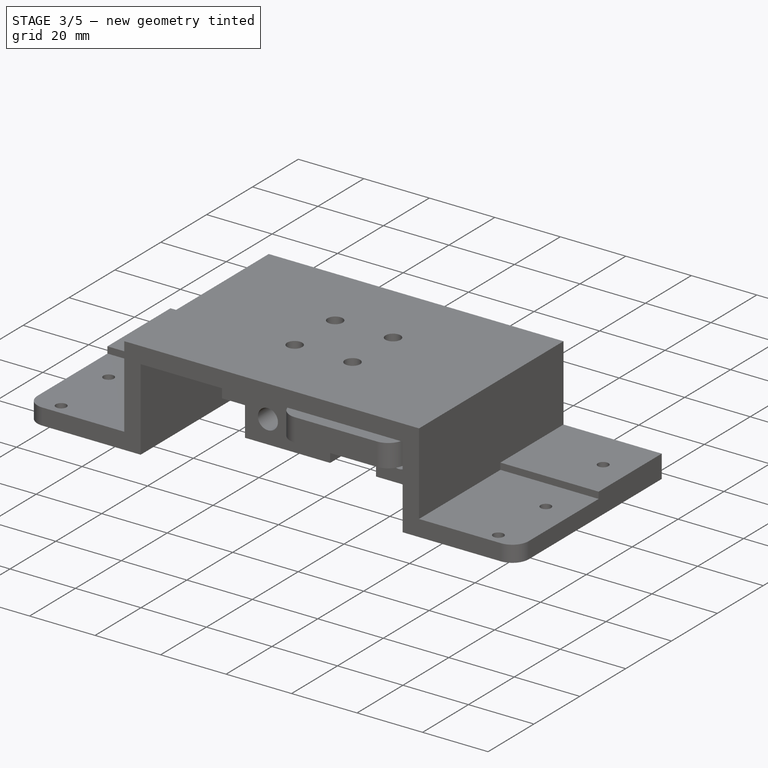
[diagram: stage 3 of 5 — iso view after this stage's code; geometry added in this stage tinted green]
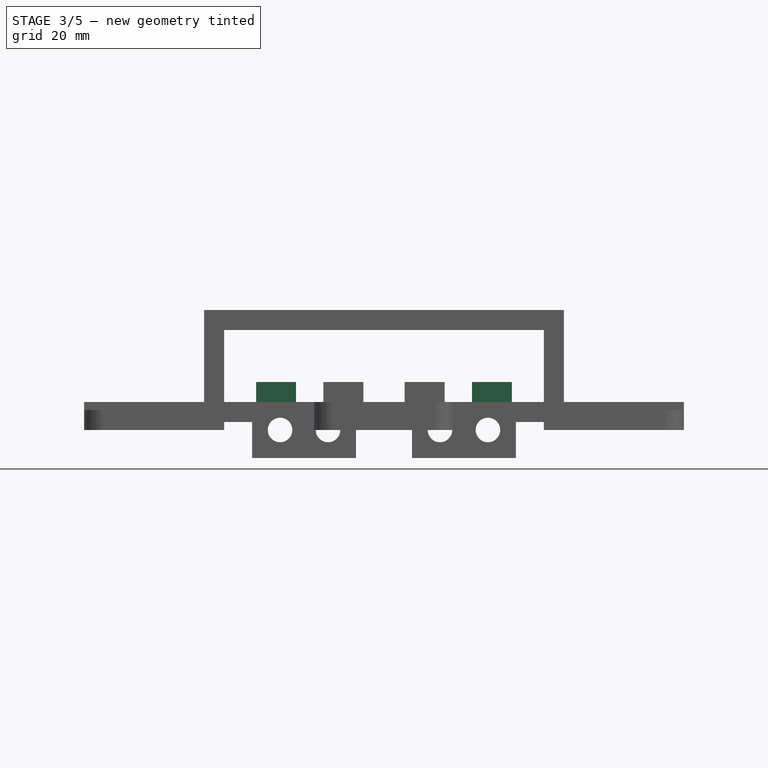
[diagram: stage 3 of 5 — front view after this stage's code; geometry added in this stage tinted green]
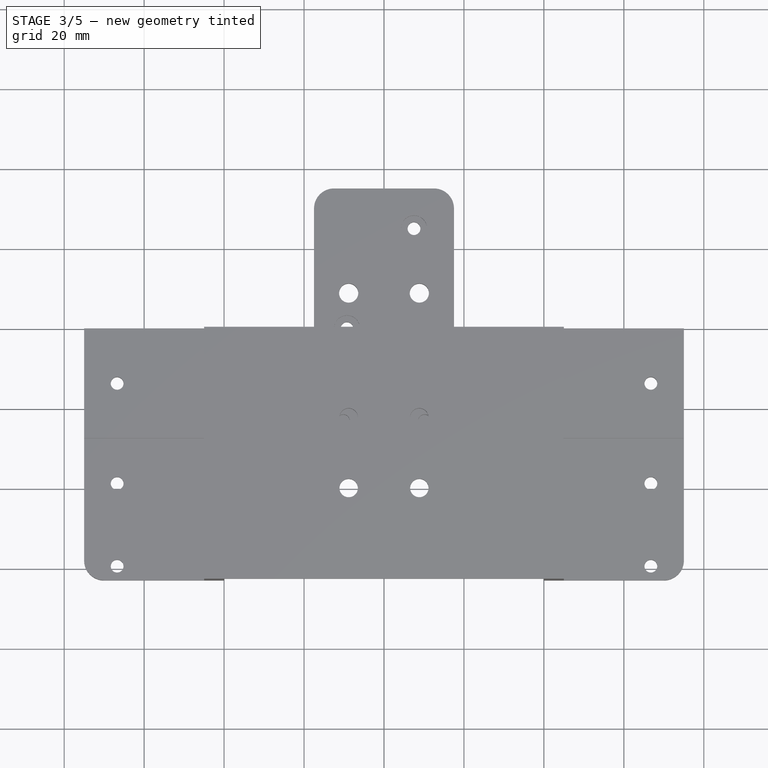
[diagram: stage 3 of 5 — top view after this stage's code; geometry added in this stage tinted green]
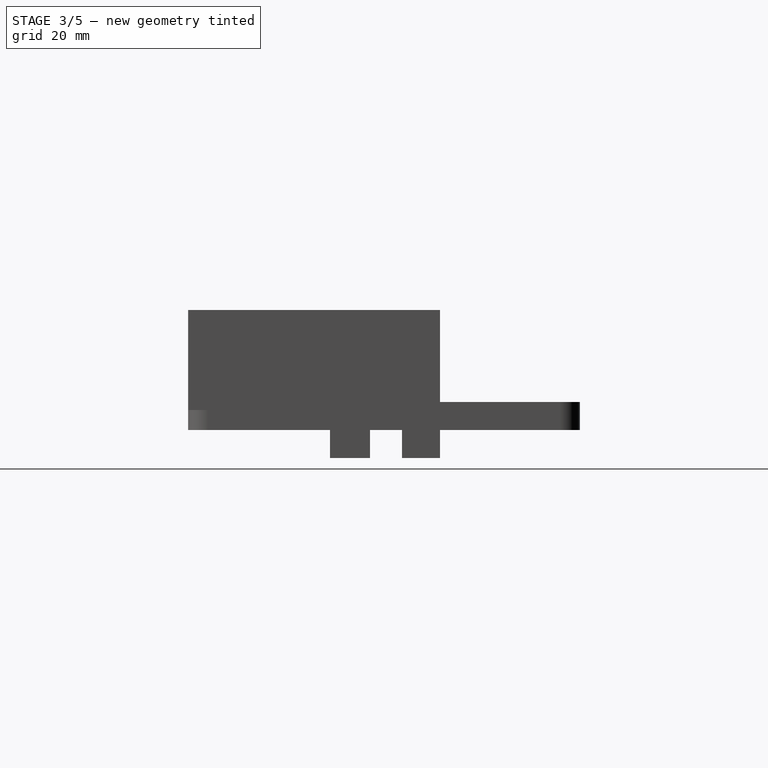
[diagram: stage 3 of 5 — right view after this stage's code; geometry added in this stage tinted green]
FEATURE [Sketcher::SketchObject] Sketch035  label="RearPlateNutCatchesSketch"
  ArcFitTolerance = 0
  AttachmentSupport = -> [Pocket]
  FullyConstrained = true
  MakeInternals = false
  MapMode = 5
  Placement = pos=(0,4e-16,2) rot=(1,0,0;3.14159rad)
  expr: Constraints[37] = <<parameters>>.chassis_plate_width / 2 - (<<parameters>>.chassis_plate_nut_diameter / 2 + <<parameters>>.chassis_plate_thickness)
  expr: Constraints[38] = <<parameters>>.chassis_plate_width / 2 - (<<parameters>>.chassis_plate_nut_diameter / 2 + <<parameters>>.chassis_plate_thickness)
  expr: Constraints[39] = <<parameters>>.rear_plate_length / 2
  expr: Constraints[40] = <<parameters>>.chassis_plate_nut_diameter
  expr: Constraints[41] = <<parameters>>.chassis_plate_nut_diameter
  sketch-geometry (14):
    g0: LineSegment StartX=-63.5 StartY=13.75 StartZ=0 EndX=-65.125 EndY=16.5646 EndZ=0
    g1: LineSegment StartX=-65.125 StartY=16.5646 StartZ=0 EndX=-68.375 EndY=16.5646 EndZ=0
    g2: LineSegment StartX=-68.375 StartY=16.5646 StartZ=0 EndX=-70 EndY=13.75 EndZ=0
    g3: LineSegment StartX=-70 StartY=13.75 StartZ=0 EndX=-68.375 EndY=10.9354 EndZ=0
    g4: LineSegment StartX=-68.375 StartY=10.9354 StartZ=0 EndX=-65.125 EndY=10.9354 EndZ=0
    g5: LineSegment StartX=-65.125 StartY=10.9354 StartZ=0 EndX=-63.5 EndY=13.75 EndZ=0
    g6: Circle [constr] CenterX=-66.75 CenterY=13.75 CenterZ=0 NormalX=0 NormalY=0 NormalZ=1 AngleXU=0 Radius=3.25
    g7: LineSegment StartX=70 StartY=13.75 StartZ=0 EndX=68.375 EndY=16.5646 EndZ=0
    g8: LineSegment StartX=68.375 StartY=16.5646 StartZ=0 EndX=65.125 EndY=16.5646 EndZ=0
    g9: LineSegment StartX=65.125 StartY=16.5646 StartZ=0 EndX=63.5 EndY=13.75 EndZ=0
    g10: LineSegment StartX=63.5 StartY=13.75 StartZ=0 EndX=65.125 EndY=10.9354 EndZ=0
    g11: LineSegment StartX=65.125 StartY=10.9354 StartZ=0 EndX=68.375 EndY=10.9354 EndZ=0
    g12: LineSegment StartX=68.375 StartY=10.9354 StartZ=0 EndX=70 EndY=13.75 EndZ=0
    g13: Circle [constr] CenterX=66.75 CenterY=13.75 CenterZ=0 NormalX=0 NormalY=0 NormalZ=1 AngleXU=0 Radius=3.25
  constraints (34):
    c: Coincident(g0,g1)
    c: Coincident(g1,g2)
    c: Coincident(g2,g3)
    c: Coincident(g3,g4)
    c: Coincident(g4,g5)
    c: Coincident(g5,g0)
    c: Equal(g0, g1-g5) x5
    c: PointOnObject(g0,g6)
    c: PointOnObject(g1,g6)
    c: PointOnObject(g2,g6)
    c: PointOnObject(g3,g6)
    c: PointOnObject(g4,g6)
    c: PointOnObject(g5,g6)
    c: Coincident(g7,g8)
    c: Coincident(g8,g9)
    c: Coincident(g9,g10)
    c: Coincident(g10,g11)
    c: Coincident(g11,g12)
    c: Coincident(g12,g7)
    c: Equal(g7, g8-g12) x5
    c: PointOnObject(g7,g13)
    c: PointOnObject(g8,g13)
    c: PointOnObject(g9,g13)
    c: PointOnObject(g10,g13)
    c: PointOnObject(g11,g13)
    c: PointOnObject(g12,g13)
    c: Horizontal(g2,g0)
    c: Horizontal(g9,g7)
    c: Horizontal(g13,g6)
    c: DistanceX(g6,g-1) = 66.75
    c: DistanceX(g-1,g13) = 66.75
    c: DistanceY(g-1,g6) = 13.75
    c: DistanceX(g2,g0) = 6.5
    c: DistanceX(g9,g7) = 6.5
FEATURE [PartDesign::Pocket] Pocket021  label="RearPlateNutCatches"
  BaseFeature = -> Pocket
  Direction = (0,0,1)
  Length = 2
  Length2 = 5
  Placement = pos=(0,0,0) rot=(1,0,0;1.5708rad)
  Profile = -> Sketch035
  ReferenceAxis = -> Sketch035 [N_Axis]
  Suppressed = false
  Type = 0
FEATURE [Sketcher::SketchObject] Sketch036  label="RearPlateRodNutChannelSketch"
  ArcFitTolerance = 0
  AttachmentSupport = -> [Pocket021]
  FullyConstrained = true
  MakeInternals = false
  MapMode = 5
  Placement = pos=(0,1.6e-15,7) rot=(0,0,1;3.14159rad)
  expr: Constraints[16] = <<parameters>>.chassis_rod_diameter + <<parameters>>.chassis_rod_diameter / 2 + <<parameters>>.chassis_rod_margin
  expr: Constraints[17] = <<parameters>>.chassis_rod_diameter + <<parameters>>.chassis_rod_diameter / 2 + <<parameters>>.chassis_rod_margin
  expr: Constraints[20] = <<parameters>>.chassis_rod_diameter + <<parameters>>.chassis_rod_diameter / 2 + <<parameters>>.chassis_rod_margin
  expr: Constraints[21] = <<parameters>>.chassis_rod_diameter + <<parameters>>.chassis_rod_diameter / 2 + <<parameters>>.chassis_rod_margin
  expr: Constraints[23] = <<parameters>>.rear_plate_length
  expr: Constraints[29] = <<parameters>>.rear_plate_length / 2
  sketch-geometry (11):
    g0: LineSegment StartX=-33 StartY=17.5 StartZ=0 EndX=-7 EndY=17.5 EndZ=0
    g1: LineSegment StartX=-7 StartY=17.5 StartZ=0 EndX=-7 EndY=9.5 EndZ=0
    g2: LineSegment StartX=-7 StartY=9.5 StartZ=0 EndX=-33 EndY=9.5 EndZ=0
    g3: LineSegment StartX=-33 StartY=9.5 StartZ=0 EndX=-33 EndY=17.5 EndZ=0
    g4: LineSegment StartX=7 StartY=17.5 StartZ=0 EndX=33 EndY=17.5 EndZ=0
    g5: LineSegment StartX=33 StartY=17.5 StartZ=0 EndX=33 EndY=9.5 EndZ=0
    g6: LineSegment StartX=33 StartY=9.5 StartZ=0 EndX=7 EndY=9.5 EndZ=0
    g7: LineSegment StartX=7 StartY=9.5 StartZ=0 EndX=7 EndY=17.5 EndZ=0
    g8: GeomPoint [constr] X=-20 Y=13.75 Z=0
    g9: GeomPoint [constr] X=20 Y=13.75 Z=0
    g10: GeomPoint [constr] X=0 Y=27.5 Z=0
  constraints (30):
    c: Coincident(g0,g1)
    c: Coincident(g1,g2)
    c: Coincident(g2,g3)
    c: Coincident(g3,g0)
    c: Horizontal(g0)
    c: Horizontal(g2)
    c: Vertical(g1)
    c: Vertical(g3)
    c: Coincident(g4,g5)
    c: Coincident(g5,g6)
    c: Coincident(g6,g7)
    c: Coincident(g7,g4)
    c: Horizontal(g4)
    c: Horizontal(g6)
    c: Vertical(g5)
    c: Vertical(g7)
    c: DistanceX(g4,g9) = 13
    c: DistanceX(g9,g4) = 13
    c: DistanceX(g-1,g9) = 20
    c: DistanceX(g8,g-1) = 20
    c: DistanceX(g8,g0) = 13
    c: DistanceX(g0,g8) = 13
    c: PointOnObject(g10,g-2)
    c: DistanceY(g-1,g10) = 27.5
    c: DistanceY(g4,g10) = 10
    c: Horizontal(g0,g4)
    c: DistanceY(g6,g4) = 8
    c: Horizontal(g1,g6)
    c: Horizontal(g8,g9)
    c: DistanceY(g-1,g9) = 13.75
FEATURE [PartDesign::Pocket] Pocket022  label="RearPlateRodNutChannel"
  BaseFeature = -> Pocket021
  Direction = (0,0,-1)
  Length = 14
  Length2 = 5
  Placement = pos=(0,0,0) rot=(1,0,0;1.5708rad)
  Profile = -> Sketch036
  ReferenceAxis = -> Sketch036 [N_Axis]
  Suppressed = false
  Type = 0
  expr: Length = <<parameters>>.chassis_rod_diameter + <<parameters>>.chassis_rod_margin * 2
FEATURE [Sketcher::SketchObject] Sketch037  label="RearPlatePSUPadsSketch"
  ArcFitTolerance = 0
  AttachmentSupport = -> [Pocket022]
  FullyConstrained = true
  MakeInternals = false
  MapMode = 5
  Placement = pos=(0,1.6e-15,7) rot=(0,0,1;3.14159rad)
  expr: Constraints[1] = <<parameters>>.rear_plate_length
  expr: Constraints[20] = <<parameters>>.rear_plate_pad_height
  expr: Constraints[21] = <<parameters>>.rear_plate_pad_width
  expr: Constraints[23] = <<parameters>>.rear_plate_pad_width
  expr: Constraints[24] = 54 mm / 2 - <<parameters>>.rear_plate_pad_width / 2
  expr: Constraints[25] = 54 mm / 2 - <<parameters>>.rear_plate_pad_width / 2
  expr: Constraints[49] = <<parameters>>.rear_plate_pad_height
  sketch-geometry (17):
    g0: GeomPoint [constr] X=0 Y=27.5 Z=0
    g1: LineSegment StartX=-32 StartY=27.5 StartZ=0 EndX=-22 EndY=27.5 EndZ=0
    g2: LineSegment StartX=-22 StartY=27.5 StartZ=0 EndX=-22 EndY=22 EndZ=0
    g3: LineSegment StartX=-22 StartY=22 StartZ=0 EndX=-32 EndY=22 EndZ=0
    g4: LineSegment StartX=-32 StartY=22 StartZ=0 EndX=-32 EndY=27.5 EndZ=0
    g5: LineSegment StartX=22 StartY=27.5 StartZ=0 EndX=32 EndY=27.5 EndZ=0
    g6: LineSegment StartX=32 StartY=27.5 StartZ=0 EndX=32 EndY=22 EndZ=0
    g7: LineSegment StartX=32 StartY=22 StartZ=0 EndX=22 EndY=22 EndZ=0
    g8: LineSegment StartX=22 StartY=22 StartZ=0 EndX=22 EndY=27.5 EndZ=0
    g9: LineSegment StartX=-32 StartY=5.5 StartZ=0 EndX=-22 EndY=5.5 EndZ=0
    g10: LineSegment StartX=-22 StartY=5.5 StartZ=0 EndX=-22 EndY=0 EndZ=0
    g11: LineSegment StartX=-22 StartY=0 StartZ=0 EndX=-32 EndY=0 EndZ=0
    g12: LineSegment StartX=-32 StartY=0 StartZ=0 EndX=-32 EndY=5.5 EndZ=0
    g13: LineSegment StartX=22 StartY=5.5 StartZ=0 EndX=32 EndY=5.5 EndZ=0
    g14: LineSegment StartX=32 StartY=5.5 StartZ=0 EndX=32 EndY=0 EndZ=0
    g15: LineSegment StartX=32 StartY=0 StartZ=0 EndX=22 EndY=0 EndZ=0
    g16: LineSegment StartX=22 StartY=0 StartZ=0 EndX=22 EndY=5.5 EndZ=0
  constraints (50):
    c: PointOnObject(g0,g-2)
    c: DistanceY(g-1,g0) = 27.5
    c: Coincident(g1,g2)
    c: Coincident(g2,g3)
    c: Coincident(g3,g4)
    c: Coincident(g4,g1)
    c: Horizontal(g1)
    c: Horizontal(g3)
    c: Vertical(g2)
    c: Vertical(g4)
    c: Coincident(g5,g6)
    c: Coincident(g6,g7)
    c: Coincident(g7,g8)
    c: Coincident(g8,g5)
    c: Horizontal(g5)
    c: Horizontal(g7)
    c: Vertical(g6)
    c: Vertical(g8)
    c: Horizontal(g1,g0)
    c: Horizontal(g0,g5)
    c: DistanceY(g3,g1) = 5.5
    c: DistanceX(g1,g1) = 10
    c: Horizontal(g7,g2)
    c: DistanceX(g5,g5) = 10
    c: DistanceX(g1,g0) = 22
    c: DistanceX(g0,g5) = 22
    c: Coincident(g9,g10)
    c: Coincident(g10,g11)
    c: Coincident(g11,g12)
    c: Coincident(g12,g9)
    c: Horizontal(g9)
    c: Horizontal(g11)
    c: Vertical(g10)
    c: Vertical(g12)
    c: Coincident(g13,g14)
    c: Coincident(g14,g15)
    c: Coincident(g15,g16)
    c: Coincident(g16,g13)
    c: Horizontal(g13)
    c: Horizontal(g15)
    c: Vertical(g14)
    c: Vertical(g16)
    c: Vertical(g13,g7)
    c: Vertical(g13,g6)
    c: Vertical(g9,g2)
    c: Vertical(g9,g3)
    c: Horizontal(g10,g-1)
    c: Horizontal(g15,g-1)
    c: Horizontal(g13,g9)
    c: DistanceY(g11,g9) = 5.5
FEATURE [PartDesign::Pad] Pad005  label="RearPlatePSUPads"
  BaseFeature = -> Pocket022
  Direction = (0,0,1)
  Length = 5
  Length2 = 10
  Placement = pos=(0,0,0) rot=(1,0,0;1.5708rad)
  Profile = -> Sketch037
  ReferenceAxis = -> Sketch037 [N_Axis]
  Suppressed = false
  Type = 0
FEATURE [Sketcher::SketchObject] Sketch038  label="RearPlatePSUPadHolesSketch"
  ArcFitTolerance = 0
  AttachmentSupport = -> [Pad005]
  FullyConstrained = true
  MakeInternals = false
  MapMode = 5
  Placement = pos=(0,0,12) rot=(0,0,1;3.14159rad)
  expr: Constraints[0] = <<parameters>>.chassis_plate_bolt_diameter
  expr: Constraints[13] = (<<parameters>>.chassis_plate_nut_diameter - 0.75 mm) / 2
  expr: Constraints[1] = <<parameters>>.chassis_plate_bolt_diameter
  expr: Constraints[2] = <<parameters>>.chassis_plate_bolt_diameter
  expr: Constraints[3] = <<parameters>>.chassis_plate_bolt_diameter
  expr: Constraints[5] = <<parameters>>.rear_plate_length
  sketch-geometry (5):
    g0: Circle CenterX=-27 CenterY=24.625 CenterZ=0 NormalX=0 NormalY=0 NormalZ=1 AngleXU=0 Radius=1.6
    g1: Circle CenterX=-27 CenterY=2.625 CenterZ=0 NormalX=0 NormalY=0 NormalZ=1 AngleXU=0 Radius=1.6
    g2: Circle CenterX=27 CenterY=24.625 CenterZ=0 NormalX=0 NormalY=0 NormalZ=1 AngleXU=0 Radius=1.6
    g3: Circle CenterX=27 CenterY=2.625 CenterZ=0 NormalX=0 NormalY=0 NormalZ=1 AngleXU=0 Radius=1.6
    g4: GeomPoint [constr] X=0 Y=27.5 Z=0
  constraints (14):
    c: Diameter(g0) = 3.2
    c: Diameter(g2) = 3.2
    c: Diameter(g3) = 3.2
    c: Diameter(g1) = 3.2
    c: PointOnObject(g4,g-2)
    c: DistanceY(g-1,g4) = 27.5
    c: DistanceX(g4,g2) = 27
    c: DistanceX(g0,g4) = 27
    c: Horizontal(g0,g2)
    c: Horizontal(g1,g3)
    c: Vertical(g0,g1)
    c: Vertical(g2,g3)
    c: DistanceY(g3,g2) = 22
    c: DistanceY(g2,g4) = 2.875
FEATURE [PartDesign::Pocket] Pocket023  label="RearPlatePSUPadHoles"
  BaseFeature = -> Pad005
  Direction = (0,0,-1)
  Length = 8.5
  Length2 = 5
  Placement = pos=(0,0,0) rot=(1,0,0;1.5708rad)
  Profile = -> Sketch038
  ReferenceAxis = -> Sketch038 [N_Axis]
  Suppressed = false
  Type = 0
FEATURE [Sketcher::SketchObject] Sketch039
  ArcFitTolerance = 0
  AttachmentSupport = -> [Pocket023]
  FullyConstrained = true
  MakeInternals = false
  MapMode = 5
  Placement = pos=(0,5e-16,0) rot=(-1,0,0;1.5708rad)
  expr: Constraints[18] = <<parameters>>.rear_plate_pad_spacing_x / 2 - <<parameters>>.chassis_plate_nut_diameter / 2
  expr: Constraints[19] = <<parameters>>.rear_plate_pad_spacing_x / 2 - <<parameters>>.chassis_plate_nut_diameter / 2
  expr: Constraints[20] = <<parameters>>.rear_plate_pad_spacing_x / 2 + <<parameters>>.chassis_plate_nut_diameter / 2
  expr: Constraints[21] = <<parameters>>.rear_plate_pad_spacing_x / 2 + <<parameters>>.chassis_plate_nut_diameter / 2
  expr: Constraints[22] = <<parameters>>.chassis_rod_diameter / 2 + <<parameters>>.chassis_rod_margin - 0.5 mm
  sketch-geometry (8):
    g0: LineSegment StartX=-30.25 StartY=-4 StartZ=0 EndX=-23.75 EndY=-4 EndZ=0
    g1: LineSegment StartX=-23.75 StartY=-4 StartZ=0 EndX=-23.75 EndY=-6.5 EndZ=0
    g2: LineSegment StartX=-23.75 StartY=-6.5 StartZ=0 EndX=-30.25 EndY=-6.5 EndZ=0
    g3: LineSegment StartX=-30.25 StartY=-6.5 StartZ=0 EndX=-30.25 EndY=-4 EndZ=0
    g4: LineSegment StartX=23.75 StartY=-4 StartZ=0 EndX=30.25 EndY=-4 EndZ=0
    g5: LineSegment StartX=30.25 StartY=-4 StartZ=0 EndX=30.25 EndY=-6.5 EndZ=0
    g6: LineSegment StartX=30.25 StartY=-6.5 StartZ=0 EndX=23.75 EndY=-6.5 EndZ=0
    g7: LineSegment StartX=23.75 StartY=-6.5 StartZ=0 EndX=23.75 EndY=-4 EndZ=0
  constraints (24):
    c: Coincident(g0,g1)
    c: Coincident(g1,g2)
    c: Coincident(g2,g3)
    c: Coincident(g3,g0)
    c: Horizontal(g0)
    c: Horizontal(g2)
    c: Vertical(g1)
    c: Vertical(g3)
    c: Coincident(g4,g5)
    c: Coincident(g5,g6)
    c: Coincident(g6,g7)
    c: Coincident(g7,g4)
    c: Horizontal(g4)
    c: Horizontal(g6)
    c: Vertical(g5)
    c: Vertical(g7)
    c: Horizontal(g1,g6)
    c: Horizontal(g4,g0)
    c: DistanceX(g1,g-1) = 23.75
    c: DistanceX(g-1,g4) = 23.75
    c: DistanceX(g-1,g4) = 30.25
    c: DistanceX(g0,g-1) = 30.25
    c: DistanceY(g1,g-1) = 6.5
    c: DistanceY(g1,g0) = 2.5
FEATURE [PartDesign::Pocket] Pocket024  label="RearPlatePSUNuts1"
  BaseFeature = -> Pocket023
  Direction = (0,-1,-2e-16)
  Length = 6.5
  Length2 = 5
  Placement = pos=(0,0,0) rot=(1,0,0;1.5708rad)
  Profile = -> Sketch039
  ReferenceAxis = -> Sketch039 [N_Axis]
  Suppressed = false
  Type = 0
  expr: Length = <<parameters>>.chassis_plate_nut_diameter
FEATURE [Sketcher::SketchObject] Sketch040
  ArcFitTolerance = 0
  AttachmentSupport = -> [Pocket024]
  FullyConstrained = true
  MakeInternals = false
  MapMode = 5
  Placement = pos=(0,-27.5,0) rot=(1,0,0;1.5708rad)
  expr: Constraints[1] = <<parameters>>.chassis_rod_diameter / 2 + <<parameters>>.chassis_rod_margin
  expr: Constraints[20] = <<parameters>>.rear_plate_pad_spacing_x / 2 - <<parameters>>.chassis_plate_nut_diameter / 2
  expr: Constraints[21] = <<parameters>>.rear_plate_pad_spacing_x / 2 - <<parameters>>.chassis_plate_nut_diameter / 2
  expr: Constraints[22] = <<parameters>>.rear_plate_pad_spacing_x / 2 + <<parameters>>.chassis_plate_nut_diameter / 2
  expr: Constraints[23] = <<parameters>>.rear_plate_pad_spacing_x / 2 + <<parameters>>.chassis_plate_nut_diameter / 2
  sketch-geometry (9):
    g0: GeomPoint [constr] X=0 Y=7 Z=0
    g1: LineSegment StartX=-30.25 StartY=6.5 StartZ=0 EndX=-23.75 EndY=6.5 EndZ=0
    g2: LineSegment StartX=-23.75 StartY=6.5 StartZ=0 EndX=-23.75 EndY=4 EndZ=0
    g3: LineSegment StartX=-23.75 StartY=4 StartZ=0 EndX=-30.25 EndY=4 EndZ=0
    g4: LineSegment StartX=-30.25 StartY=4 StartZ=0 EndX=-30.25 EndY=6.5 EndZ=0
    g5: LineSegment StartX=23.75 StartY=6.5 StartZ=0 EndX=30.25 EndY=6.5 EndZ=0
    g6: LineSegment StartX=30.25 StartY=6.5 StartZ=0 EndX=30.25 EndY=4 EndZ=0
    g7: LineSegment StartX=30.25 StartY=4 StartZ=0 EndX=23.75 EndY=4 EndZ=0
    g8: LineSegment StartX=23.75 StartY=4 StartZ=0 EndX=23.75 EndY=6.5 EndZ=0
  constraints (26):
    c: PointOnObject(g0,g-2)
    c: DistanceY(g-1,g0) = 7
    c: Coincident(g1,g2)
    c: Coincident(g2,g3)
    c: Coincident(g3,g4)
    c: Coincident(g4,g1)
    c: Horizontal(g1)
    c: Horizontal(g3)
    c: Vertical(g2)
    c: Vertical(g4)
    c: Coincident(g5,g6)
    c: Coincident(g6,g7)
    c: Coincident(g7,g8)
    c: Coincident(g8,g5)
    c: Horizontal(g5)
    c: Horizontal(g7)
    c: Vertical(g6)
    c: Vertical(g8)
    c: Horizontal(g1,g5)
    c: Horizontal(g2,g7)
    c: DistanceX(g1,g0) = 23.75
    c: DistanceX(g0,g5) = 23.75
    c: DistanceX(g1,g0) = 30.25
    c: DistanceX(g0,g5) = 30.25
    c: DistanceY(g1,g0) = 0.5
    c: DistanceY(g3,g1) = 2.5
FEATURE [PartDesign::Pocket] Pocket025  label="RearPlatePSUNuts2"
  BaseFeature = -> Pocket024
  Direction = (0,1,-2e-16)
  Length = 6.5
  Length2 = 5
  Placement = pos=(0,0,0) rot=(1,0,0;1.5708rad)
  Profile = -> Sketch040
  ReferenceAxis = -> Sketch040 [N_Axis]
  Suppressed = false
  Type = 0
  expr: Length = <<parameters>>.chassis_plate_nut_diameter
FEATURE [Sketcher::SketchObject] Sketch041
  ArcFitTolerance = 0
  AttachmentSupport = -> [Pocket025]
  FullyConstrained = true
  MakeInternals = false
  MapMode = 5
  Placement = pos=(0,5e-16,0) rot=(-1,0,0;1.5708rad)
  expr: Constraints[8] = <<parameters>>.chassis_rod_diameter / 2 + <<parameters>>.chassis_rod_margin
  expr: Constraints[9] = <<parameters>>.chassis_rod_diameter / 2 + <<parameters>>.chassis_rod_margin
  sketch-geometry (4):
    g0: LineSegment StartX=-8.5 StartY=7 StartZ=0 EndX=8.5 EndY=7 EndZ=0
    g1: LineSegment StartX=8.5 StartY=7 StartZ=0 EndX=8.5 EndY=-7 EndZ=0
    g2: LineSegment StartX=8.5 StartY=-7 StartZ=0 EndX=-8.5 EndY=-7 EndZ=0
    g3: LineSegment StartX=-8.5 StartY=-7 StartZ=0 EndX=-8.5 EndY=7 EndZ=0
  constraints (12):
    c: Coincident(g0,g1)
    c: Coincident(g1,g2)
    c: Coincident(g2,g3)
    c: Coincident(g3,g0)
    c: Horizontal(g0)
    c: Horizontal(g2)
    c: Vertical(g1)
    c: Vertical(g3)
    c: DistanceY(g-1,g0) = 7
    c: DistanceY(g2,g-1) = 7
    c: DistanceX(g2,g-1) = 8.5
    c: DistanceX(g-1,g1) = 8.5
FEATURE [PartDesign::Pocket] Pocket026  label="RearPlatePSUConnector"
  BaseFeature = -> Pocket025
  Direction = (0,-1,-2e-16)
  Length = 9
  Length2 = 5
  Placement = pos=(0,0,0) rot=(1,0,0;1.5708rad)
  Profile = -> Sketch041
  ReferenceAxis = -> Sketch041 [N_Axis]
  Suppressed = false
  Type = 0
FEATURE [PartDesign::Fillet] Fillet  label="RearPlatePSUConnectorSmoothing"
  Base = -> Pocket026 [Edge73,Edge131]
  BaseFeature = -> Pocket026
  Placement = pos=(0,0,0) rot=(1,0,0;1.5708rad)
  Radius = 1
  SupportTransform = false
  Suppressed = false
  UseAllEdges = false
FEATURE [PartDesign::Fillet] Fillet001  label="RearPlateNutChannelSmoothing"
  Base = -> Fillet [Edge35,Edge177]
  BaseFeature = -> Fillet
  Placement = pos=(0,0,0) rot=(1,0,0;1.5708rad)
  Radius = 3
  SupportTransform = false
  Suppressed = false
  UseAllEdges = false
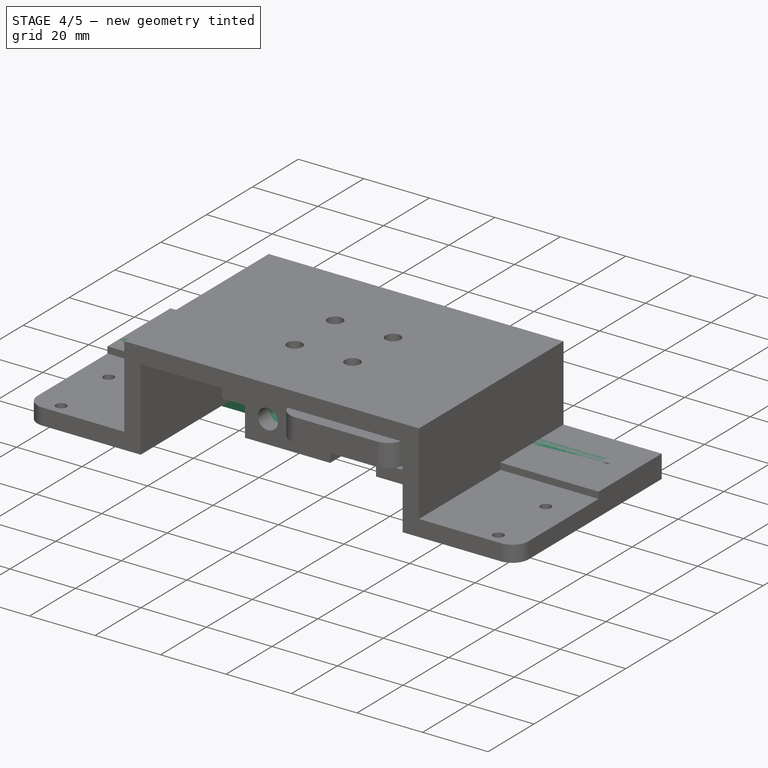
[diagram: stage 4 of 5 — iso view after this stage's code; geometry added in this stage tinted green]
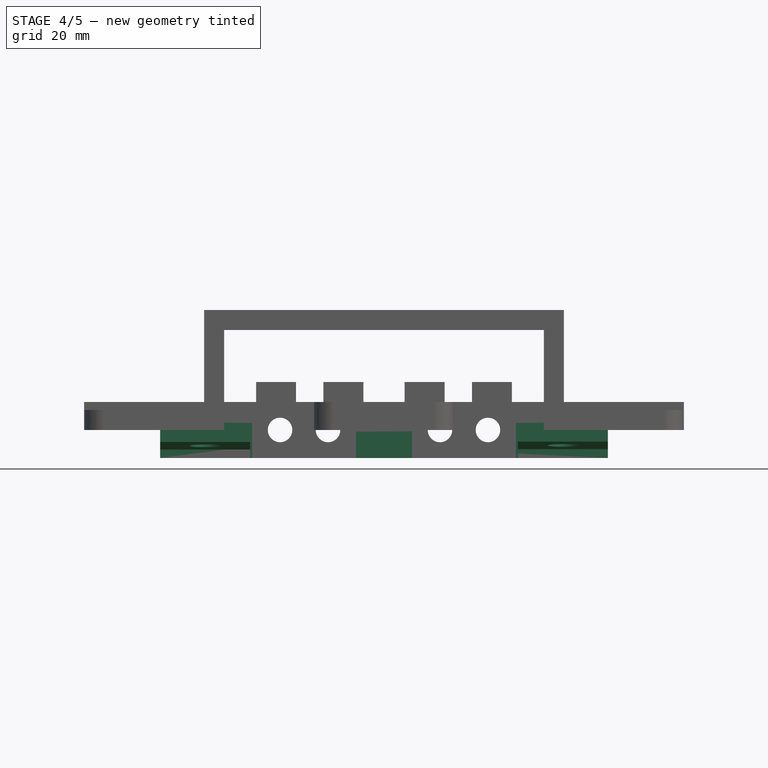
[diagram: stage 4 of 5 — front view after this stage's code; geometry added in this stage tinted green]
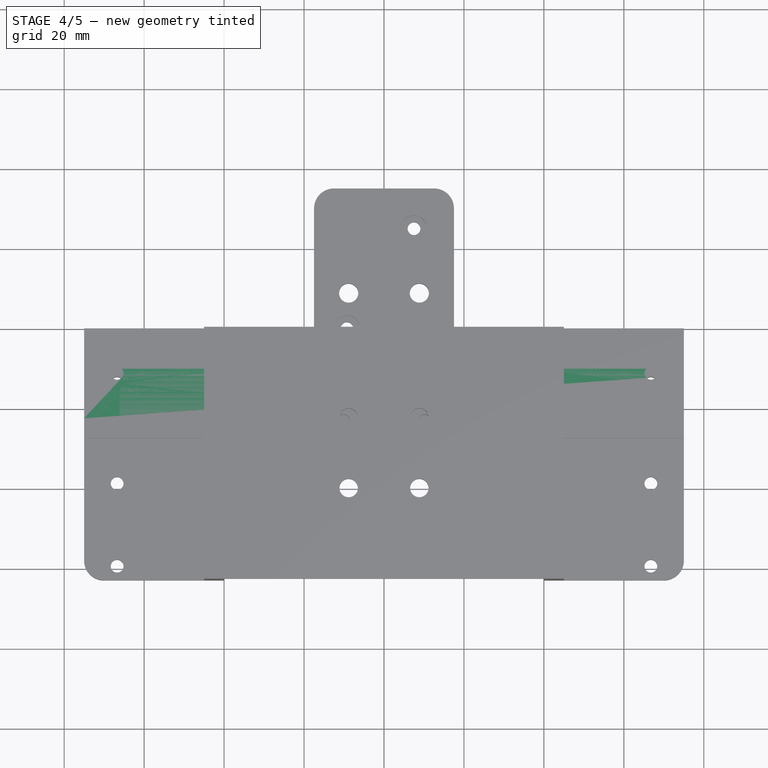
[diagram: stage 4 of 5 — top view after this stage's code; geometry added in this stage tinted green]
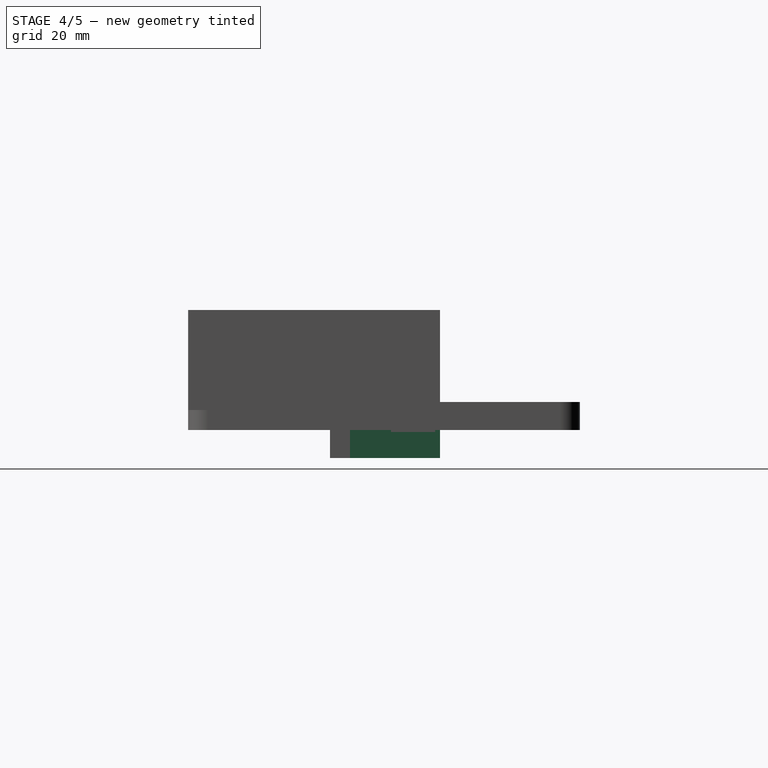
[diagram: stage 4 of 5 — right view after this stage's code; geometry added in this stage tinted green]
FEATURE [Spreadsheet::Sheet] Spreadsheet  label="parameters"
  cells = A1='chassis_post_diameter; B1(chassis_post_diameter)==7.5 mm; A2='chassis_post_spacing; B2(chassis_post_spacing)=89.5; A3='chassis_post_height; B3(chassis_post_height)==10 mm; A4='chassis_post_hole_to_edge; B4(chassis_post_hole_to_edge)==7.5 mm; A5='hole_expansion; B5(hole_expansion)==0.25 mm; A6='chassis_post_cotter_pin_start_height; B6(chassis_post_cotter_pin_start_height)==5 mm; A7='chassis_post_cotter_pin_end_height; B7(chassis_post_cotter_pin_end_height)==7.5 mm; A8='chassis_post_cotter_pin_depth; B8(chassis_post_cotter_pin_depth)==13 mm; A9='chassis_post_cotter_pin_width; B9(chassis_post_cotter_pin_width)=8.8; A10='chassis_rod_diameter; B10(chassis_rod_diameter)==6 mm; A11='chassis_rod_margin; B11(chassis_rod_margin)==4 mm; A12='chassis_plate_thickness; B12(chassis_plate_thickness)==5 mm; A13='chassis_plate_width; B13(chassis_plate_width)==150 mm; A14='chassis_post_foot_diameter; B14(chassis_post_foot_diameter)==23 mm; A15='chassis_front_vertical_offset; B15(chassis_front_vertical_offset)==2.1 mm; A16='chassis_plate_bolt_diameter; B16(chassis_plate_bolt_diameter)==3.2 mm; A17='chassis_plate_nut_diameter; B17(chassis_plate_nut_diameter)==6.5 mm; A18='rear_plate_length; B18(rear_plate_length)==27.5 mm; A19='rear_plate_pad_width; B19(rear_plate_pad_width)==10 mm; A20='rear_plate_pad_height; B20(rear_plate_pad_height)==5.5 mm; A21='rear_plate_pad_spacing_x; B21(rear_plate_pad_spacing_x)==54 mm; A22='rear_plate_pad_spacing_y; B22(rear_plate_pad_spacing_y)==22 mm; A23='front_plate_length; B23(front_plate_length)==27.5 mm; A24='front_plate_pad_width; B24(front_plate_pad_width)==10 mm; A25='front_plate_pad_height; B25(front_plate_pad_height)==5.5 mm; A26='front_plate_pad_spacing_x; B26(front_plate_pad_spacing_x)==20.32 mm; A27='front_plate_pad_spacing_y; B27(front_plate_pad_spacing_y)==20.32 mm
FEATURE [Sketcher::SketchObject] Sketch007  label="FrontHullSketch"
  ArcFitTolerance = 0
  AttachmentSupport = -> [XZ_Plane003]
  FullyConstrained = true
  MakeInternals = false
  MapMode = 5
  Placement = pos=(0,0,0) rot=(1,0,0;1.5708rad)
  expr: Constraints[10] = <<parameters>>.chassis_rod_diameter
  expr: Constraints[11] = <<parameters>>.chassis_rod_diameter
  expr: Constraints[13] = <<parameters>>.chassis_rod_diameter
  expr: Constraints[14] = <<parameters>>.chassis_rod_diameter
  expr: Constraints[17] = <<parameters>>.chassis_rod_diameter / 2 + <<parameters>>.chassis_rod_margin
  expr: Constraints[22] = <<parameters>>.chassis_rod_diameter / 2 + <<parameters>>.chassis_rod_margin - <<parameters>>.chassis_plate_thickness
  expr: Constraints[25] = <<parameters>>.chassis_plate_thickness
  expr: Constraints[36] = <<parameters>>.chassis_plate_width / 2
  expr: Constraints[37] = <<parameters>>.chassis_plate_width / 2
  expr: Constraints[38] = <<parameters>>.chassis_post_spacing / 2 + <<parameters>>.chassis_post_diameter / 2 mm + 7.5
  expr: Constraints[39] = <<parameters>>.chassis_post_spacing / 2 + <<parameters>>.chassis_post_diameter / 2 mm + 7.5
  expr: Constraints[4] = <<parameters>>.chassis_rod_diameter + <<parameters>>.hole_expansion / 2
  expr: Constraints[5] = <<parameters>>.chassis_rod_diameter + <<parameters>>.hole_expansion / 2
  expr: Constraints[6] = <<parameters>>.chassis_rod_diameter + <<parameters>>.hole_expansion / 2
  expr: Constraints[7] = <<parameters>>.chassis_rod_diameter + <<parameters>>.hole_expansion / 2
  sketch-geometry (14):
    g0: Circle CenterX=-14 CenterY=0 CenterZ=0 NormalX=0 NormalY=0 NormalZ=1 AngleXU=0 Radius=3.0625
    g1: Circle CenterX=14 CenterY=0 CenterZ=0 NormalX=0 NormalY=0 NormalZ=1 AngleXU=0 Radius=3.0625
    g2: Circle CenterX=-26 CenterY=0 CenterZ=0 NormalX=0 NormalY=0 NormalZ=1 AngleXU=0 Radius=3.0625
    g3: Circle CenterX=26 CenterY=0 CenterZ=0 NormalX=0 NormalY=0 NormalZ=1 AngleXU=0 Radius=3.0625
    g4: GeomPoint [constr] X=20 Y=0 Z=0
    g5: GeomPoint [constr] X=-20 Y=0 Z=0
    g6: LineSegment StartX=-56 StartY=-7 StartZ=0 EndX=56 EndY=-7 EndZ=0
    g7: LineSegment StartX=56 StartY=-7 StartZ=0 EndX=56 EndY=2 EndZ=0
    g8: LineSegment StartX=-56 StartY=-7 StartZ=0 EndX=-56 EndY=2 EndZ=0
    g9: LineSegment StartX=-75 StartY=7 StartZ=0 EndX=75 EndY=7 EndZ=0
    g10: LineSegment StartX=-75 StartY=7 StartZ=0 EndX=-75 EndY=2 EndZ=0
    g11: LineSegment StartX=75 StartY=7 StartZ=0 EndX=75 EndY=2 EndZ=0
    g12: LineSegment StartX=-75 StartY=2 StartZ=0 EndX=-56 EndY=2 EndZ=0
    g13: LineSegment StartX=56 StartY=2 StartZ=0 EndX=75 EndY=2 EndZ=0
  constraints (40):
    c: Horizontal(g2,g0)
    c: Horizontal(g0,g-1)
    c: Horizontal(g1,g-1)
    c: Horizontal(g3,g1)
    c: Diameter(g2) = 6.125
    c: Diameter(g0) = 6.125
    c: Diameter(g1) = 6.125
    c: Diameter(g3) = 6.125
    c: PointOnObject(g4,g-1)
    c: PointOnObject(g5,g-1)
    c: DistanceX(g2,g5) = 6
    c: DistanceX(g5,g0) = 6
    c: DistanceX(g5,g-1) = 20
    c: DistanceX(g1,g4) = 6
    c: DistanceX(g4,g3) = 6
    c: DistanceX(g-1,g4) = 20
    c: Horizontal(g6)
    c: DistanceY(g6,g2) = 7
    c: Coincident(g7,g6)
    c: Vertical(g7)
    c: Coincident(g8,g6)
    c: Vertical(g8)
    c: DistanceY(g2,g8) = 2
    c: Horizontal(g8,g7)
    c: Horizontal(g9)
    c: DistanceY(g8,g9) = 5
    c: Coincident(g10,g9)
    c: Vertical(g10)
    c: Coincident(g11,g9)
    c: Vertical(g11)
    c: Horizontal(g11,g7)
    c: Horizontal(g8,g10)
    c: Coincident(g12,g10)
    c: Coincident(g12,g8)
    c: Coincident(g13,g7)
    c: Coincident(g13,g11)
    c: DistanceX(g9,g-1) = 75
    c: DistanceX(g-1,g9) = 75
    c: DistanceX(g6,g-1) = 56
    c: DistanceX(g-1,g6) = 56
FEATURE [PartDesign::Pad] Pad002  label="FrontHull"
  Direction = (0,-1,2e-16)
  Length = 22.5
  Length2 = 10
  Placement = pos=(0,0,0) rot=(1,0,0;1.5708rad)
  Profile = -> Sketch007
  ReferenceAxis = -> Sketch007 [N_Axis]
  Suppressed = false
  Type = 0
  expr: Length = <<parameters>>.chassis_post_diameter + <<parameters>>.chassis_post_hole_to_edge * 2
FEATURE [Sketcher::SketchObject] Sketch008  label="FrontRightPostCutoutSketch"
  ArcFitTolerance = 0
  AttachmentSupport = -> [Pad002]
  FullyConstrained = true
  MakeInternals = false
  MapMode = 5
  Placement = pos=(-56,0,0) rot=(0.707107,0,-0.707107;3.14159rad)
  expr: Constraints[15] = <<parameters>>.chassis_rod_diameter / 2 + <<parameters>>.chassis_rod_margin
  expr: Constraints[2] = <<parameters>>.chassis_rod_diameter / 2 + <<parameters>>.chassis_rod_margin - 2 mm
  expr: Constraints[5] = <<parameters>>.chassis_post_diameter + <<parameters>>.chassis_post_hole_to_edge * 2
  sketch-geometry (6):
    g0: LineSegment StartX=5 StartY=22.5 StartZ=0 EndX=3 EndY=22.5 EndZ=0
    g1: GeomPoint [constr] X=5 Y=0 Z=0
    g2: LineSegment StartX=3 StartY=22.5 StartZ=0 EndX=5 EndY=0 EndZ=0
    g3: LineSegment StartX=5 StartY=22.5 StartZ=0 EndX=12 EndY=22.5 EndZ=0
    g4: LineSegment StartX=12 StartY=22.5 StartZ=0 EndX=12 EndY=0 EndZ=0
    g5: LineSegment StartX=5 StartY=0 StartZ=0 EndX=12 EndY=0 EndZ=0
  constraints (16):
    c: Horizontal(g0)
    c: PointOnObject(g1,g-1)
    c: DistanceX(g-1,g1) = 5
    c: Vertical(g0,g1)
    c: DistanceX(g0,g0) = 2
    c: DistanceY(g-1,g0) = 22.5
    c: Coincident(g2,g0)
    c: Coincident(g2,g1)
    c: Coincident(g3,g0)
    c: Horizontal(g3)
    c: Coincident(g4,g3)
    c: PointOnObject(g4,g-1)
    c: Vertical(g4)
    c: Coincident(g5,g2)
    c: Coincident(g5,g4)
    c: DistanceX(g2,g4) = 7
FEATURE [PartDesign::Pocket] Pocket005  label="FrontRightPostCutout"
  BaseFeature = -> Pad002
  Direction = (1,0,2e-16)
  Length = 22.5
  Length2 = 5
  Placement = pos=(0,0,0) rot=(1,0,0;1.5708rad)
  Profile = -> Sketch008
  ReferenceAxis = -> Sketch008 [N_Axis]
  Suppressed = false
  Type = 0
  expr: Length = (<<parameters>>.chassis_post_diameter / 2 + <<parameters>>.chassis_post_hole_to_edge) * 2
FEATURE [Sketcher::SketchObject] Sketch009  label="FrontLeftPostCutoutSketch"
  ArcFitTolerance = 0
  AttachmentSupport = -> [Pocket005]
  FullyConstrained = true
  MakeInternals = false
  MapMode = 5
  Placement = pos=(56,0,0) rot=(0.707107,0,0.707107;3.14159rad)
  expr: Constraints[1] = <<parameters>>.chassis_rod_diameter / 2 + <<parameters>>.chassis_rod_margin - <<parameters>>.chassis_front_vertical_offset
  expr: Constraints[4] = <<parameters>>.chassis_rod_diameter / 2 + <<parameters>>.chassis_rod_margin
  expr: Constraints[7] = <<parameters>>.chassis_post_diameter + <<parameters>>.chassis_post_hole_to_edge * 2
  sketch-geometry (6):
    g0: GeomPoint [constr] X=-4.9 Y=0 Z=0
    g1: LineSegment StartX=-4.9 StartY=0 StartZ=0 EndX=-11.9 EndY=0 EndZ=0
    g2: LineSegment StartX=-4.9 StartY=22.5 StartZ=0 EndX=-2.9 EndY=22.5 EndZ=0
    g3: LineSegment StartX=-11.9 StartY=0 StartZ=0 EndX=-11.9 EndY=22.5 EndZ=0
    g4: LineSegment StartX=-11.9 StartY=22.5 StartZ=0 EndX=-4.9 EndY=22.5 EndZ=0
    g5: LineSegment StartX=-2.9 StartY=22.5 StartZ=0 EndX=-4.9 EndY=0 EndZ=0
  constraints (16):
    c: PointOnObject(g0,g-1)
    c: DistanceX(g0,g-1) = 4.9
    c: Coincident(g1,g0)
    c: Horizontal(g1)
    c: DistanceX(g1,g1) = 7
    c: Horizontal(g2)
    c: Vertical(g2,g1)
    c: DistanceY(g-1,g2) = 22.5
    c: Coincident(g3,g1)
    c: Vertical(g3)
    c: Horizontal(g3,g2)
    c: Coincident(g4,g3)
    c: Coincident(g4,g2)
    c: DistanceX(g2,g2) = 2
    c: Coincident(g5,g2)
    c: Coincident(g5,g1)
FEATURE [PartDesign::Pocket] Pocket006  label="FrontLeftPostCutout"
  BaseFeature = -> Pocket005
  Direction = (-1,0,2e-16)
  Length = 22.5
  Length2 = 5
  Placement = pos=(0,0,0) rot=(1,0,0;1.5708rad)
  Profile = -> Sketch009
  ReferenceAxis = -> Sketch009 [N_Axis]
  Suppressed = false
  Type = 0
  expr: Length = (<<parameters>>.chassis_post_diameter / 2 + <<parameters>>.chassis_post_hole_to_edge) * 2
FEATURE [Sketcher::SketchObject] Sketch010  label="PostHolesSketch"
  ArcFitTolerance = 0
  AttachmentSupport = -> [Pocket006]
  FullyConstrained = true
  MakeInternals = false
  MapMode = 5
  Placement = pos=(1.1e-15,-0.44096,-4.9608) rot=(1,0,0;3.05294rad)
  expr: Constraints[1] = <<parameters>>.chassis_post_spacing / 2
  expr: Constraints[4] = <<parameters>>.chassis_post_diameter + <<parameters>>.hole_expansion
  expr: Constraints[6] = <<parameters>>.chassis_post_diameter + <<parameters>>.hole_expansion
  expr: Constraints[7] = <<parameters>>.chassis_post_spacing / 2
  sketch-geometry (4):
    g0: GeomPoint [constr] X=-44.75 Y=0 Z=0
    g1: GeomPoint [constr] X=-44.75 Y=11.3 Z=0
    g2: Circle CenterX=-44.75 CenterY=11.3 CenterZ=0 NormalX=0 NormalY=0 NormalZ=1 AngleXU=0 Radius=3.875
    g3: Circle CenterX=44.75 CenterY=11.3 CenterZ=0 NormalX=0 NormalY=0 NormalZ=1 AngleXU=0 Radius=3.875
  constraints (9):
    c: PointOnObject(g0,g-1)
    c: DistanceX(g0,g-1) = 44.75
    c: DistanceY(g0,g1) = 11.3
    c: Coincident(g1,g2)
    c: Diameter(g2) = 7.75
    c: Vertical(g2,g0)
    c: Diameter(g3) = 7.75
    c: DistanceX(g-1,g3) = 44.75
    c: DistanceY(g-1,g3) = 11.3
FEATURE [PartDesign::Pocket] Pocket007  label="PostHoles"
  BaseFeature = -> Pocket006
  Direction = (0,0.0885398,0.996073)
  Length = 10
  Length2 = 5
  Placement = pos=(0,0,0) rot=(1,0,0;1.5708rad)
  Profile = -> Sketch010
  ReferenceAxis = -> Sketch010 [N_Axis]
  Suppressed = false
  Type = 0
  expr: Length = <<parameters>>.chassis_post_height
FEATURE [Sketcher::SketchObject] Sketch011  label="FrontRightPostCotterPinSlotSketch"
  ArcFitTolerance = 0
  AttachmentSupport = -> [Pocket007]
  FullyConstrained = true
  MakeInternals = false
  MapMode = 5
  Placement = pos=(56,0,0) rot=(0.707107,0,0.707107;3.14159rad)
  expr: Constraints[11] = <<parameters>>.chassis_rod_diameter / 2 + <<parameters>>.chassis_rod_margin
  expr: Constraints[12] = 4.4 mm + <<parameters>>.chassis_front_vertical_offset
  expr: Constraints[9] = <<parameters>>.chassis_post_diameter + <<parameters>>.chassis_post_hole_to_edge / 2 + 1 mm
  sketch-geometry (5):
    g0: LineSegment StartX=-0.5 StartY=0 StartZ=0 EndX=2 EndY=0 EndZ=0
    g1: LineSegment StartX=-0.5 StartY=0 StartZ=0 EndX=-0.5 EndY=12.25 EndZ=0
    g2: LineSegment StartX=-0.5 StartY=12.25 StartZ=0 EndX=2 EndY=12.25 EndZ=0
    g3: LineSegment StartX=2 StartY=12.25 StartZ=0 EndX=2 EndY=0 EndZ=0
    g4: GeomPoint [constr] X=-7 Y=0 Z=0
  constraints (14):
    c: PointOnObject(g0,g-1)
    c: PointOnObject(g0,g-1)
    c: Coincident(g1,g0)
    c: Vertical(g1)
    c: Coincident(g2,g1)
    c: Horizontal(g2)
    c: Coincident(g3,g2)
    c: Coincident(g3,g0)
    c: Vertical(g3)
    c: DistanceY(g-1,g2) = 12.25
    c: PointOnObject(g4,g-1)
    c: DistanceX(g4,g-1) = 7
    c: DistanceX(g4,g0) = 6.5
    c: DistanceX(g0,g0) = 2.5
FEATURE [PartDesign::Pocket] Pocket008  label="FrontRightCotterPinSlot"
  BaseFeature = -> Pocket007
  Direction = (-1,0,2e-16)
  Length = 15
  Length2 = 5
  Placement = pos=(0,0,0) rot=(1,0,0;1.5708rad)
  Profile = -> Sketch011
  ReferenceAxis = -> Sketch011 [N_Axis]
  Suppressed = false
  Type = 0
  expr: Length = <<parameters>>.chassis_post_hole_to_edge + <<parameters>>.chassis_post_diameter
FEATURE [Sketcher::SketchObject] Sketch012  label="FrontRightPostCotterPinChannelSketch"
  ArcFitTolerance = 0
  AttachmentSupport = -> [Pocket008]
  FullyConstrained = true
  MakeInternals = false
  MapMode = 5
  Placement = pos=(41,0,0) rot=(0.707107,0,0.707107;3.14159rad)
  expr: Constraints[10] = 4.4 mm + <<parameters>>.chassis_front_vertical_offset
  expr: Constraints[12] = <<parameters>>.chassis_post_diameter / 2 + <<parameters>>.chassis_post_hole_to_edge + 1 mm
  expr: Constraints[13] = <<parameters>>.chassis_post_cotter_pin_width + 0.5
  expr: Constraints[1] = <<parameters>>.chassis_rod_diameter / 2 + <<parameters>>.chassis_rod_margin
  sketch-geometry (5):
    g0: GeomPoint [constr] X=-7 Y=0 Z=0
    g1: LineSegment StartX=-0.5 StartY=2.95 StartZ=0 EndX=2 EndY=2.95 EndZ=0
    g2: LineSegment StartX=2 StartY=2.95 StartZ=0 EndX=2 EndY=12.25 EndZ=0
    g3: LineSegment StartX=2 StartY=12.25 StartZ=0 EndX=-0.5 EndY=12.25 EndZ=0
    g4: LineSegment StartX=-0.5 StartY=12.25 StartZ=0 EndX=-0.5 EndY=2.95 EndZ=0
  constraints (14):
    c: PointOnObject(g0,g-1)
    c: DistanceX(g0,g-1) = 7
    c: Coincident(g1,g2)
    c: Coincident(g2,g3)
    c: Coincident(g3,g4)
    c: Coincident(g4,g1)
    c: Horizontal(g1)
    c: Horizontal(g3)
    c: Vertical(g2)
    c: Vertical(g4)
    c: DistanceX(g0,g1) = 6.5
    c: DistanceX(g1,g1) = 2.5
    c: DistanceY(g-1,g2) = 12.25
    c: DistanceY(g1,g2) = 9.3
FEATURE [PartDesign::Pocket] Pocket009  label="FrontRightCotterPinChannel"
  BaseFeature = -> Pocket008
  Direction = (-1,0,2e-16)
  Length = 9.25
  Length2 = 5
  Placement = pos=(0,0,0) rot=(1,0,0;1.5708rad)
  Profile = -> Sketch012
  ReferenceAxis = -> Sketch012 [N_Axis]
  Suppressed = false
  Type = 0
  expr: Length = <<parameters>>.chassis_post_cotter_pin_depth - <<parameters>>.chassis_post_diameter / 2
FEATURE [Sketcher::SketchObject] Sketch013  label="FrontLeftPostCotterPinSlotSketch"
  ArcFitTolerance = 0
  AttachmentSupport = -> [Pocket009]
  FullyConstrained = true
  MakeInternals = false
  MapMode = 5
  Placement = pos=(-56,0,0) rot=(0.707107,0,-0.707107;3.14159rad)
  expr: Constraints[10] = 4.4 mm + <<parameters>>.chassis_front_vertical_offset
  expr: Constraints[13] = <<parameters>>.chassis_post_diameter / 2 + <<parameters>>.chassis_post_hole_to_edge + 1 mm
  expr: Constraints[9] = <<parameters>>.chassis_rod_diameter / 2 + <<parameters>>.chassis_rod_margin
  sketch-geometry (5):
    g0: LineSegment StartX=-2 StartY=12.25 StartZ=0 EndX=0.5 EndY=12.25 EndZ=0
    g1: LineSegment StartX=0.5 StartY=12.25 StartZ=0 EndX=0.5 EndY=0 EndZ=0
    g2: LineSegment StartX=0.5 StartY=0 StartZ=0 EndX=-2 EndY=0 EndZ=0
    g3: LineSegment StartX=-2 StartY=0 StartZ=0 EndX=-2 EndY=12.25 EndZ=0
    g4: GeomPoint [constr] X=7 Y=0 Z=0
  constraints (14):
    c: Coincident(g0,g1)
    c: Coincident(g1,g2)
    c: Coincident(g2,g3)
    c: Coincident(g3,g0)
    c: Horizontal(g0)
    c: Horizontal(g2)
    c: Vertical(g1)
    c: Vertical(g3)
    c: PointOnObject(g4,g-1)
    c: DistanceX(g-1,g4) = 7
    c: DistanceX(g1,g4) = 6.5
    c: DistanceX(g2,g1) = 2.5
    c: Horizontal(g1,g4)
    c: DistanceY(g-1,g0) = 12.25
FEATURE [PartDesign::Pocket] Pocket010  label="FrontLeftCotterPinSlot"
  BaseFeature = -> Pocket009
  Direction = (1,0,2e-16)
  Length = 15
  Length2 = 5
  Placement = pos=(0,0,0) rot=(1,0,0;1.5708rad)
  Profile = -> Sketch013
  ReferenceAxis = -> Sketch013 [N_Axis]
  Suppressed = false
  Type = 0
  expr: Length = <<parameters>>.chassis_post_hole_to_edge + <<parameters>>.chassis_post_diameter
FEATURE [Sketcher::SketchObject] Sketch014  label="FrontLeftPostCotterPinChannelSketch"
  ArcFitTolerance = 0
  AttachmentSupport = -> [Pocket010]
  FullyConstrained = true
  MakeInternals = false
  MapMode = 5
  Placement = pos=(-41,0,0) rot=(0.707107,0,-0.707107;3.14159rad)
  expr: Constraints[10] = 4.4 mm + <<parameters>>.chassis_front_vertical_offset
  expr: Constraints[12] = <<parameters>>.chassis_post_diameter / 2 + <<parameters>>.chassis_post_hole_to_edge + 1 mm
  expr: Constraints[13] = <<parameters>>.chassis_post_cotter_pin_width + 1
  expr: Constraints[1] = <<parameters>>.chassis_rod_diameter / 2 + <<parameters>>.chassis_rod_margin
  sketch-geometry (5):
    g0: GeomPoint [constr] X=7 Y=0 Z=0
    g1: LineSegment StartX=-2 StartY=12.25 StartZ=0 EndX=0.5 EndY=12.25 EndZ=0
    g2: LineSegment StartX=0.5 StartY=12.25 StartZ=0 EndX=0.5 EndY=2.45 EndZ=0
    g3: LineSegment StartX=0.5 StartY=2.45 StartZ=0 EndX=-2 EndY=2.45 EndZ=0
    g4: LineSegment StartX=-2 StartY=2.45 StartZ=0 EndX=-2 EndY=12.25 EndZ=0
  constraints (14):
    c: PointOnObject(g0,g-1)
    c: DistanceX(g-1,g0) = 7
    c: Coincident(g1,g2)
    c: Coincident(g2,g3)
    c: Coincident(g3,g4)
    c: Coincident(g4,g1)
    c: Horizontal(g1)
    c: Horizontal(g3)
    c: Vertical(g2)
    c: Vertical(g4)
    c: DistanceX(g2,g0) = 6.5
    c: DistanceX(g3,g2) = 2.5
    c: DistanceY(g-1,g1) = 12.25
    c: DistanceY(g2,g1) = 9.8
FEATURE [PartDesign::Pocket] Pocket011  label="FrontLeftCotterPinChannel"
  BaseFeature = -> Pocket010
  Direction = (1,0,2e-16)
  Length = 9.25
  Length2 = 5
  Placement = pos=(0,0,0) rot=(1,0,0;1.5708rad)
  Profile = -> Sketch014
  ReferenceAxis = -> Sketch014 [N_Axis]
  Suppressed = false
  Type = 0
  expr: Length = <<parameters>>.chassis_post_cotter_pin_depth - <<parameters>>.chassis_post_diameter / 2
FEATURE [PartDesign::Body] Body002  label="RearBlockBody"
  AllowCompound = false
  Group = -> [Sketch016,Pad003,Sketch020,Pocket012,Sketch025,Sketch026,Sketch027,Sketch028,Pocket013,Pocket014,Pocket015,Pocket016,Sketch029,Pocket017,Sketch030,Pocket018]
  Origin = -> Origin005
  Tip = -> Pocket018
FEATURE [App::Part] Part002  label="rear-block"
  Group = -> [Body002]
  Origin = -> Origin004
  Placement = pos=(0,49.5,0) rot=(0,0,1;0rad)
FEATURE [Sketcher::SketchObject] Sketch031  label="FrontBoltHolesSketch"
  ArcFitTolerance = 0
  AttachmentSupport = -> [Pocket011]
  FullyConstrained = true
  MakeInternals = false
  MapMode = 5
  Placement = pos=(0,1.6e-15,7) rot=(0,0,1;3.14159rad)
  expr: Constraints[1] = <<parameters>>.chassis_post_diameter / 2 + <<parameters>>.chassis_post_hole_to_edge
  expr: Constraints[2] = <<parameters>>.chassis_plate_width / 2 - (<<parameters>>.chassis_plate_nut_diameter / 2 + <<parameters>>.chassis_plate_thickness)
  expr: Constraints[3] = <<parameters>>.chassis_plate_width / 2 - (<<parameters>>.chassis_plate_nut_diameter / 2 + <<parameters>>.chassis_plate_thickness)
  expr: Constraints[4] = <<parameters>>.chassis_plate_bolt_diameter
  expr: Constraints[5] = <<parameters>>.chassis_plate_bolt_diameter
  sketch-geometry (2):
    g0: Circle CenterX=-66.75 CenterY=11.25 CenterZ=0 NormalX=0 NormalY=0 NormalZ=1 AngleXU=0 Radius=1.6
    g1: Circle CenterX=66.75 CenterY=11.25 CenterZ=0 NormalX=0 NormalY=0 NormalZ=1 AngleXU=0 Radius=1.6
  constraints (6):
    c: Horizontal(g0,g1)
    c: DistanceY(g-1,g1) = 11.25
    c: DistanceX(g-1,g1) = 66.75
    c: DistanceX(g0,g-1) = 66.75
    c: Diameter(g1) = 3.2
    c: Diameter(g0) = 3.2
FEATURE [PartDesign::Pocket] Pocket019  label="FrontBoltHoles"
  BaseFeature = -> Pocket011
  Direction = (0,0,-1)
  Length = 5
  Length2 = 5
  Placement = pos=(0,0,0) rot=(1,0,0;1.5708rad)
  Profile = -> Sketch031
  ReferenceAxis = -> Sketch031 [N_Axis]
  Suppressed = false
  Type = 0
  expr: Length = <<parameters>>.chassis_plate_thickness
FEATURE [PartDesign::Body] Body001  label="FrontBlockBody"
  AllowCompound = false
  Group = -> [Sketch007,Pad002,Sketch008,Pocket005,Sketch009,Sketch010,Sketch011,Sketch012,Sketch013,Sketch014,Pocket006,Pocket007,Pocket008,Pocket009,Pocket010,Pocket011,Sketch031,Pocket019,Sketch032,Pocket020]
  Origin = -> Origin003
  Tip = -> Pocket020
FEATURE [App::Part] Part001  label="front-block"
  Group = -> [Body001]
  Origin = -> Origin002
FEATURE [Sketcher::SketchObject] Sketch033  label="SpacerHullSketch"
  ArcFitTolerance = 0
  AttachmentSupport = -> [XZ_Plane006]
  FullyConstrained = true
  MakeInternals = false
  MapMode = 5
  Placement = pos=(0,0,0) rot=(1,0,0;1.5708rad)
  expr: Constraints[10] = <<parameters>>.chassis_rod_diameter
  expr: Constraints[11] = <<parameters>>.chassis_rod_diameter
  expr: Constraints[12] = 20 mm
  expr: Constraints[13] = <<parameters>>.chassis_rod_diameter
  expr: Constraints[14] = <<parameters>>.chassis_rod_diameter
  expr: Constraints[17] = <<parameters>>.chassis_rod_diameter / 2 + <<parameters>>.chassis_rod_margin
  expr: Constraints[22] = <<parameters>>.chassis_rod_diameter / 2 + <<parameters>>.chassis_rod_margin - <<parameters>>.chassis_plate_thickness
  expr: Constraints[25] = <<parameters>>.chassis_plate_thickness
  expr: Constraints[36] = <<parameters>>.chassis_plate_width / 2
  expr: Constraints[37] = <<parameters>>.chassis_plate_width / 2
  expr: Constraints[38] = <<parameters>>.chassis_post_spacing / 2 + <<parameters>>.chassis_post_diameter / 2 mm + 7.5
  expr: Constraints[39] = <<parameters>>.chassis_post_spacing / 2 + <<parameters>>.chassis_post_diameter / 2 mm + 7.5
  expr: Constraints[4] = <<parameters>>.chassis_rod_diameter + <<parameters>>.hole_expansion / 2
  expr: Constraints[5] = <<parameters>>.chassis_rod_diameter + <<parameters>>.hole_expansion / 2
  expr: Constraints[6] = <<parameters>>.chassis_rod_diameter + <<parameters>>.hole_expansion / 2
  expr: Constraints[7] = <<parameters>>.chassis_rod_diameter + <<parameters>>.hole_expansion / 2
  sketch-geometry (14):
    g0: Circle CenterX=-14 CenterY=0 CenterZ=0 NormalX=0 NormalY=0 NormalZ=1 AngleXU=0 Radius=3.0625
    g1: Circle CenterX=14 CenterY=0 CenterZ=0 NormalX=0 NormalY=0 NormalZ=1 AngleXU=0 Radius=3.0625
    g2: Circle CenterX=-26 CenterY=0 CenterZ=0 NormalX=0 NormalY=0 NormalZ=1 AngleXU=0 Radius=3.0625
    g3: Circle CenterX=26 CenterY=0 CenterZ=0 NormalX=0 NormalY=0 NormalZ=1 AngleXU=0 Radius=3.0625
    g4: GeomPoint [constr] X=20 Y=0 Z=0
    g5: GeomPoint [constr] X=-20 Y=0 Z=0
    g6: LineSegment StartX=-56 StartY=-7 StartZ=0 EndX=56 EndY=-7 EndZ=0
    g7: LineSegment StartX=56 StartY=-7 StartZ=0 EndX=56 EndY=2 EndZ=0
    g8: LineSegment StartX=-56 StartY=-7 StartZ=0 EndX=-56 EndY=2 EndZ=0
    g9: LineSegment StartX=-75 StartY=7 StartZ=0 EndX=75 EndY=7 EndZ=0
    g10: LineSegment StartX=-75 StartY=7 StartZ=0 EndX=-75 EndY=2 EndZ=0
    g11: LineSegment StartX=75 StartY=7 StartZ=0 EndX=75 EndY=2 EndZ=0
    g12: LineSegment StartX=-75 StartY=2 StartZ=0 EndX=-56 EndY=2 EndZ=0
    g13: LineSegment StartX=56 StartY=2 StartZ=0 EndX=75 EndY=2 EndZ=0
  constraints (40):
    c: Horizontal(g2,g0)
    c: Horizontal(g0,g-1)
    c: Horizontal(g1,g-1)
    c: Horizontal(g3,g1)
    c: Diameter(g2) = 6.125
    c: Diameter(g0) = 6.125
    c: Diameter(g1) = 6.125
    c: Diameter(g3) = 6.125
    c: PointOnObject(g4,g-1)
    c: PointOnObject(g5,g-1)
    c: DistanceX(g2,g5) = 6
    c: DistanceX(g5,g0) = 6
    c: DistanceX(g5,g-1) = 20
    c: DistanceX(g1,g4) = 6
    c: DistanceX(g4,g3) = 6
    c: DistanceX(g-1,g4) = 20
    c: Horizontal(g6)
    c: DistanceY(g6,g2) = 7
    c: Coincident(g7,g6)
    c: Vertical(g7)
    c: Coincident(g8,g6)
    c: Vertical(g8)
    c: DistanceY(g2,g8) = 2
    c: Horizontal(g8,g7)
    c: Horizontal(g9)
    c: DistanceY(g8,g9) = 5
    c: Coincident(g10,g9)
    c: Vertical(g10)
    c: Coincident(g11,g9)
    c: Vertical(g11)
    c: Horizontal(g11,g7)
    c: Horizontal(g8,g10)
    c: Coincident(g12,g10)
    c: Coincident(g12,g8)
    c: Coincident(g13,g7)
    c: Coincident(g13,g11)
    c: DistanceX(g9,g-1) = 75
    c: DistanceX(g-1,g9) = 75
    c: DistanceX(g6,g-1) = 56
    c: DistanceX(g-1,g6) = 56
FEATURE [PartDesign::Pad] Pad  label="SpacerHull"
  Direction = (0,-1,2e-16)
  Length = 1.2
  Length2 = 10
  Placement = pos=(0,0,0) rot=(1,0,0;1.5708rad)
  Profile = -> Sketch033
  ReferenceAxis = -> Sketch033 [N_Axis]
  Suppressed = false
  Type = 0
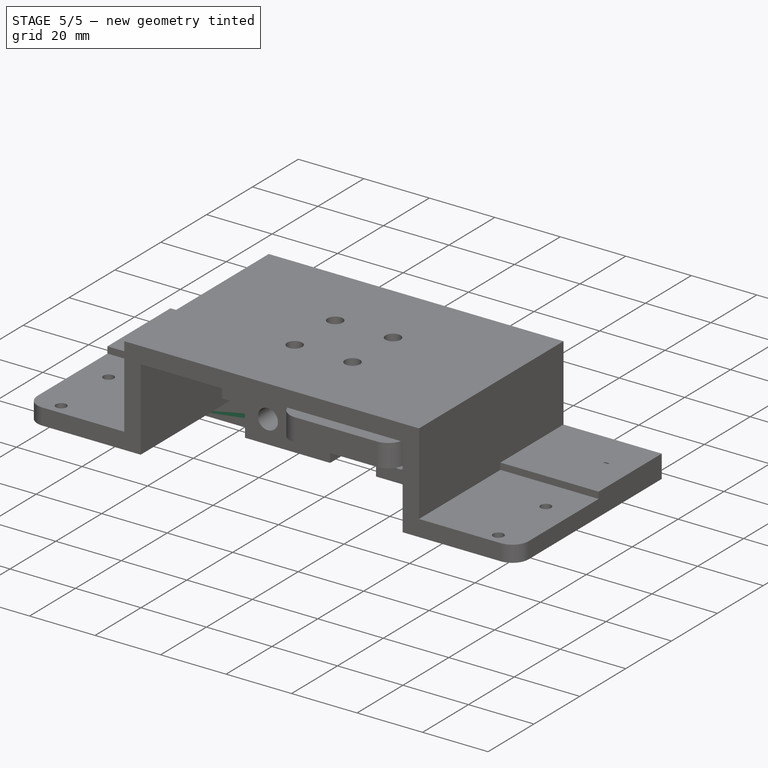
[diagram: stage 5 of 5 — iso view after this stage's code; geometry added in this stage tinted green]
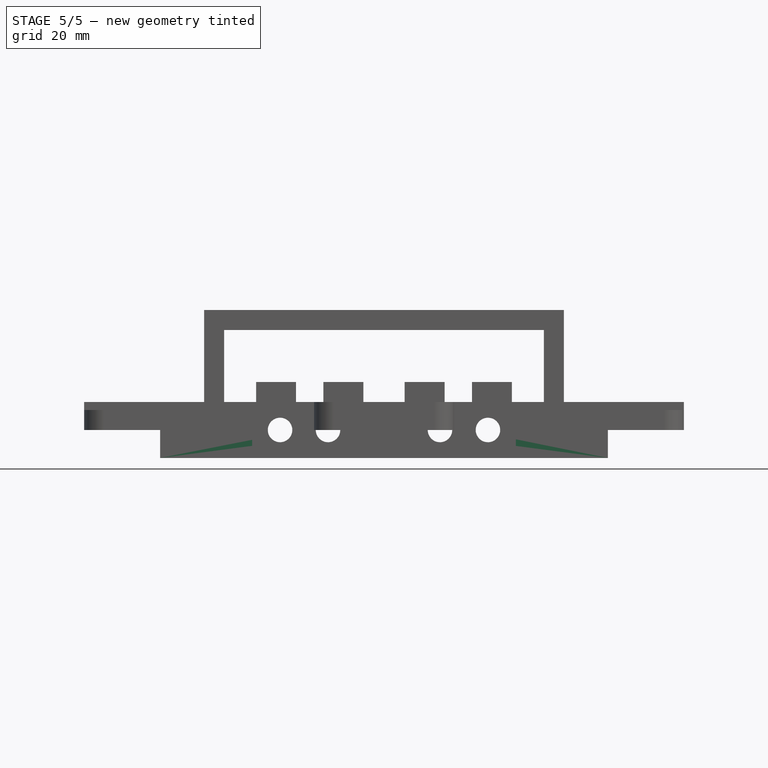
[diagram: stage 5 of 5 — front view after this stage's code; geometry added in this stage tinted green]
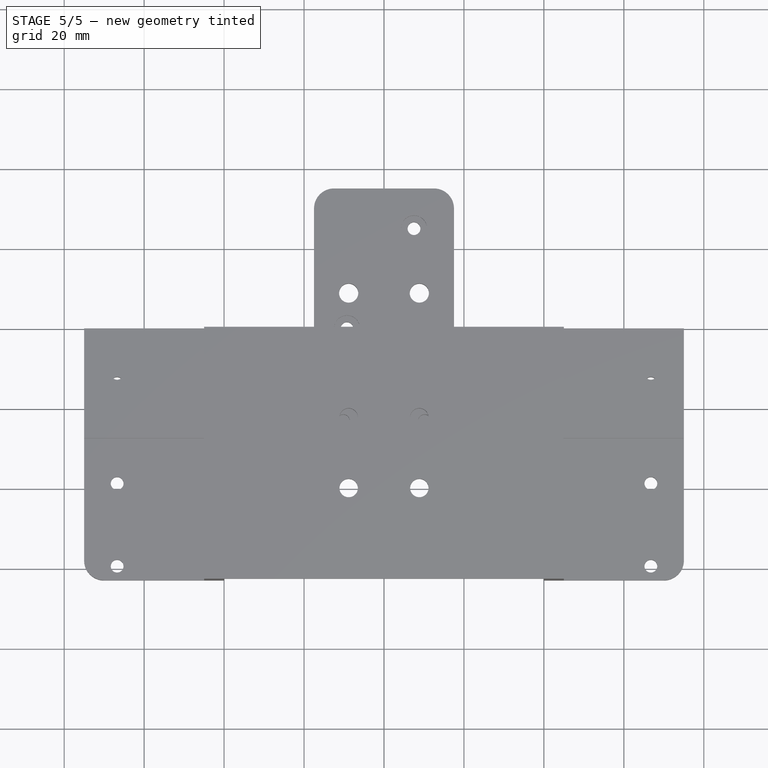
[diagram: stage 5 of 5 — top view after this stage's code; geometry added in this stage tinted green]
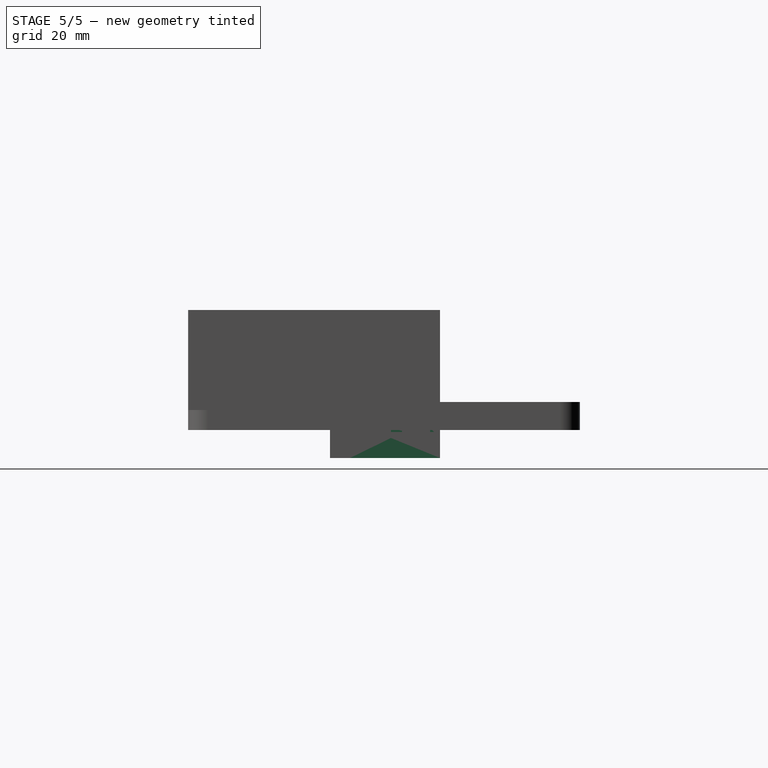
[diagram: stage 5 of 5 — right view after this stage's code; geometry added in this stage tinted green]
FEATURE [Sketcher::SketchObject] Sketch016  label="RearHullSketch"
  ArcFitTolerance = 0
  AttachmentSupport = -> [XZ_Plane005]
  FullyConstrained = true
  MakeInternals = false
  MapMode = 5
  Placement = pos=(0,0,0) rot=(1,0,0;1.5708rad)
  expr: Constraints[10] = <<parameters>>.chassis_rod_diameter
  expr: Constraints[11] = <<parameters>>.chassis_rod_diameter
  expr: Constraints[13] = <<parameters>>.chassis_rod_diameter
  expr: Constraints[14] = <<parameters>>.chassis_rod_diameter
  expr: Constraints[17] = <<parameters>>.chassis_rod_diameter / 2 + <<parameters>>.chassis_rod_margin
  expr: Constraints[22] = <<parameters>>.chassis_rod_diameter / 2 + <<parameters>>.chassis_rod_margin - <<parameters>>.chassis_plate_thickness
  expr: Constraints[25] = <<parameters>>.chassis_plate_thickness
  expr: Constraints[36] = <<parameters>>.chassis_plate_width / 2
  expr: Constraints[37] = <<parameters>>.chassis_plate_width / 2
  expr: Constraints[38] = <<parameters>>.chassis_post_spacing / 2 + <<parameters>>.chassis_post_diameter / 2 mm + 7.5
  expr: Constraints[39] = <<parameters>>.chassis_post_spacing / 2 + <<parameters>>.chassis_post_diameter / 2 mm + 7.5
  expr: Constraints[4] = <<parameters>>.chassis_rod_diameter + <<parameters>>.hole_expansion / 2
  expr: Constraints[5] = <<parameters>>.chassis_rod_diameter + <<parameters>>.hole_expansion / 2
  expr: Constraints[6] = <<parameters>>.chassis_rod_diameter + <<parameters>>.hole_expansion / 2
  expr: Constraints[7] = <<parameters>>.chassis_rod_diameter + <<parameters>>.hole_expansion / 2
  sketch-geometry (14):
    g0: Circle CenterX=-14 CenterY=0 CenterZ=0 NormalX=0 NormalY=0 NormalZ=1 AngleXU=0 Radius=3.0625
    g1: Circle CenterX=14 CenterY=0 CenterZ=0 NormalX=0 NormalY=0 NormalZ=1 AngleXU=0 Radius=3.0625
    g2: Circle CenterX=-26 CenterY=0 CenterZ=0 NormalX=0 NormalY=0 NormalZ=1 AngleXU=0 Radius=3.0625
    g3: Circle CenterX=26 CenterY=0 CenterZ=0 NormalX=0 NormalY=0 NormalZ=1 AngleXU=0 Radius=3.0625
    g4: GeomPoint [constr] X=20 Y=0 Z=0
    g5: GeomPoint [constr] X=-20 Y=0 Z=0
    g6: LineSegment StartX=-56 StartY=-7 StartZ=0 EndX=56 EndY=-7 EndZ=0
    g7: LineSegment StartX=56 StartY=-7 StartZ=0 EndX=56 EndY=2 EndZ=0
    g8: LineSegment StartX=-56 StartY=-7 StartZ=0 EndX=-56 EndY=2 EndZ=0
    g9: LineSegment StartX=-75 StartY=7 StartZ=0 EndX=75 EndY=7 EndZ=0
    g10: LineSegment StartX=-75 StartY=7 StartZ=0 EndX=-75 EndY=2 EndZ=0
    g11: LineSegment StartX=75 StartY=7 StartZ=0 EndX=75 EndY=2 EndZ=0
    g12: LineSegment StartX=-75 StartY=2 StartZ=0 EndX=-56 EndY=2 EndZ=0
    g13: LineSegment StartX=56 StartY=2 StartZ=0 EndX=75 EndY=2 EndZ=0
  constraints (40):
    c: Horizontal(g2,g0)
    c: Horizontal(g0,g-1)
    c: Horizontal(g1,g-1)
    c: Horizontal(g3,g1)
    c: Diameter(g2) = 6.125
    c: Diameter(g0) = 6.125
    c: Diameter(g1) = 6.125
    c: Diameter(g3) = 6.125
    c: PointOnObject(g4,g-1)
    c: PointOnObject(g5,g-1)
    c: DistanceX(g2,g5) = 6
    c: DistanceX(g5,g0) = 6
    c: DistanceX(g5,g-1) = 20
    c: DistanceX(g1,g4) = 6
    c: DistanceX(g4,g3) = 6
    c: DistanceX(g-1,g4) = 20
    c: Horizontal(g6)
    c: DistanceY(g6,g2) = 7
    c: Coincident(g7,g6)
    c: Vertical(g7)
    c: Coincident(g8,g6)
    c: Vertical(g8)
    c: DistanceY(g2,g8) = 2
    c: Horizontal(g8,g7)
    c: Horizontal(g9)
    c: DistanceY(g8,g9) = 5
    c: Coincident(g10,g9)
    c: Vertical(g10)
    c: Coincident(g11,g9)
    c: Vertical(g11)
    c: Horizontal(g11,g7)
    c: Horizontal(g8,g10)
    c: Coincident(g12,g10)
    c: Coincident(g12,g8)
    c: Coincident(g13,g7)
    c: Coincident(g13,g11)
    c: DistanceX(g9,g-1) = 75
    c: DistanceX(g-1,g9) = 75
    c: DistanceX(g6,g-1) = 56
    c: DistanceX(g-1,g6) = 56
FEATURE [PartDesign::Pad] Pad003  label="RearHull"
  Direction = (0,-1,2e-16)
  Length = 22.5
  Length2 = 10
  Placement = pos=(0,0,0) rot=(1,0,0;1.5708rad)
  Profile = -> Sketch016
  ReferenceAxis = -> Sketch016 [N_Axis]
  Suppressed = false
  Type = 0
  expr: Length = <<parameters>>.chassis_post_diameter + <<parameters>>.chassis_post_hole_to_edge * 2
FEATURE [Sketcher::SketchObject] Sketch020  label="RearPostHolesSketch"
  ArcFitTolerance = 0
  AttachmentSupport = -> [Pad003]
  FullyConstrained = true
  MakeInternals = false
  MapMode = 5
  Placement = pos=(0,-1.6e-15,-7) rot=(1,0,0;3.14159rad)
  expr: Constraints[1] = <<parameters>>.chassis_post_spacing / 2
  expr: Constraints[2] = <<parameters>>.chassis_post_diameter / 2 + <<parameters>>.chassis_post_hole_to_edge
  expr: Constraints[4] = <<parameters>>.chassis_post_diameter + <<parameters>>.hole_expansion
  expr: Constraints[6] = <<parameters>>.chassis_post_diameter + <<parameters>>.hole_expansion
  expr: Constraints[7] = <<parameters>>.chassis_post_spacing / 2
  expr: Constraints[8] = 11.3 mm
  sketch-geometry (4):
    g0: GeomPoint [constr] X=-44.75 Y=0 Z=0
    g1: GeomPoint [constr] X=-44.75 Y=11.25 Z=0
    g2: Circle CenterX=-44.75 CenterY=11.25 CenterZ=0 NormalX=0 NormalY=0 NormalZ=1 AngleXU=0 Radius=3.875
    g3: Circle CenterX=44.75 CenterY=11.3 CenterZ=0 NormalX=0 NormalY=0 NormalZ=1 AngleXU=0 Radius=3.875
  constraints (9):
    c: PointOnObject(g0,g-1)
    c: DistanceX(g0,g-1) = 44.75
    c: DistanceY(g0,g1) = 11.25
    c: Coincident(g1,g2)
    c: Diameter(g2) = 7.75
    c: Vertical(g2,g0)
    c: Diameter(g3) = 7.75
    c: DistanceX(g-1,g3) = 44.75
    c: DistanceY(g-1,g3) = 11.3
FEATURE [PartDesign::Pocket] Pocket012  label="RearPostHoles"
  BaseFeature = -> Pad003
  Direction = (0,0,1)
  Length = 10
  Length2 = 5
  Placement = pos=(0,0,0) rot=(1,0,0;1.5708rad)
  Profile = -> Sketch020
  ReferenceAxis = -> Sketch020 [N_Axis]
  Suppressed = false
  Type = 0
  expr: Length = <<parameters>>.chassis_post_height
FEATURE [Sketcher::SketchObject] Sketch025  label="RearRightPostCotterPinSlotSketch"
  ArcFitTolerance = 0
  AttachmentSupport = -> [Pocket012]
  FullyConstrained = true
  MakeInternals = false
  MapMode = 5
  Placement = pos=(56,0,0) rot=(0.707107,0,0.707107;3.14159rad)
  expr: Constraints[11] = <<parameters>>.chassis_rod_diameter / 2 + <<parameters>>.chassis_rod_margin
  expr: Constraints[12] = <<parameters>>.chassis_post_cotter_pin_start_height
  expr: Constraints[13] = <<parameters>>.chassis_post_cotter_pin_end_height
  expr: Constraints[9] = <<parameters>>.chassis_post_diameter + <<parameters>>.chassis_post_hole_to_edge / 2 + 1 mm
  sketch-geometry (5):
    g0: LineSegment StartX=-2 StartY=0 StartZ=0 EndX=0.5 EndY=0 EndZ=0
    g1: LineSegment StartX=-2 StartY=0 StartZ=0 EndX=-2 EndY=12.25 EndZ=0
    g2: LineSegment StartX=-2 StartY=12.25 StartZ=0 EndX=0.5 EndY=12.25 EndZ=0
    g3: LineSegment StartX=0.5 StartY=12.25 StartZ=0 EndX=0.5 EndY=0 EndZ=0
    g4: GeomPoint [constr] X=-7 Y=0 Z=0
  constraints (14):
    c: PointOnObject(g0,g-1)
    c: PointOnObject(g0,g-1)
    c: Coincident(g1,g0)
    c: Vertical(g1)
    c: Coincident(g2,g1)
    c: Horizontal(g2)
    c: Coincident(g3,g2)
    c: Coincident(g3,g0)
    c: Vertical(g3)
    c: DistanceY(g-1,g2) = 12.25
    c: PointOnObject(g4,g-1)
    c: DistanceX(g4,g-1) = 7
    c: DistanceX(g4,g0) = 5
    c: DistanceX(g4,g0) = 7.5
FEATURE [Sketcher::SketchObject] Sketch027  label="RearLeftPostCotterPinSlotSketch"
  ArcFitTolerance = 0
  AttachmentSupport = -> [Pocket012]
  FullyConstrained = true
  MakeInternals = false
  MapMode = 5
  Placement = pos=(-56,0,0) rot=(0.707107,0,-0.707107;3.14159rad)
  expr: Constraints[10] = <<parameters>>.chassis_post_cotter_pin_start_height
  expr: Constraints[12] = <<parameters>>.chassis_post_diameter / 2 + <<parameters>>.chassis_post_hole_to_edge + 1 mm
  expr: Constraints[13] = <<parameters>>.chassis_post_cotter_pin_end_height
  expr: Constraints[9] = <<parameters>>.chassis_rod_diameter / 2 + <<parameters>>.chassis_rod_margin
  sketch-geometry (5):
    g0: LineSegment StartX=-0.5 StartY=12.25 StartZ=0 EndX=2 EndY=12.25 EndZ=0
    g1: LineSegment StartX=2 StartY=12.25 StartZ=0 EndX=2 EndY=0 EndZ=0
    g2: LineSegment StartX=2 StartY=0 StartZ=0 EndX=-0.5 EndY=0 EndZ=0
    g3: LineSegment StartX=-0.5 StartY=0 StartZ=0 EndX=-0.5 EndY=12.25 EndZ=0
    g4: GeomPoint [constr] X=7 Y=0 Z=0
  constraints (14):
    c: Coincident(g0,g1)
    c: Coincident(g1,g2)
    c: Coincident(g2,g3)
    c: Coincident(g3,g0)
    c: Horizontal(g0)
    c: Horizontal(g2)
    c: Vertical(g1)
    c: Vertical(g3)
    c: PointOnObject(g4,g-1)
    c: DistanceX(g-1,g4) = 7
    c: DistanceX(g1,g4) = 5
    c: Horizontal(g1,g4)
    c: DistanceY(g-1,g0) = 12.25
    c: DistanceX(g2,g4) = 7.5
FEATURE [PartDesign::Pocket] Pocket013  label="RearRightPostCotterPinSlot"
  BaseFeature = -> Pocket012
  Direction = (-1,0,2e-16)
  Length = 15
  Length2 = 5
  Placement = pos=(0,0,0) rot=(1,0,0;1.5708rad)
  Profile = -> Sketch025
  ReferenceAxis = -> Sketch025 [N_Axis]
  Suppressed = false
  Type = 0
  expr: Length = <<parameters>>.chassis_post_hole_to_edge + <<parameters>>.chassis_post_diameter
FEATURE [Sketcher::SketchObject] Sketch026  label="RearRightPostCotterPinChannelSketch"
  ArcFitTolerance = 0
  AttachmentSupport = -> [Pocket013]
  FullyConstrained = true
  MakeInternals = false
  MapMode = 5
  Placement = pos=(41,0,0) rot=(0.707107,0,0.707107;3.14159rad)
  expr: Constraints[10] = <<parameters>>.chassis_post_cotter_pin_start_height
  expr: Constraints[11] = <<parameters>>.chassis_post_diameter / 2 + <<parameters>>.chassis_post_hole_to_edge + 1 mm
  expr: Constraints[12] = <<parameters>>.chassis_post_cotter_pin_width + 1
  expr: Constraints[13] = <<parameters>>.chassis_post_cotter_pin_end_height
  expr: Constraints[1] = <<parameters>>.chassis_rod_diameter / 2 + <<parameters>>.chassis_rod_margin
  sketch-geometry (5):
    g0: GeomPoint [constr] X=-7 Y=0 Z=0
    g1: LineSegment StartX=-2 StartY=2.45 StartZ=0 EndX=0.5 EndY=2.45 EndZ=0
    g2: LineSegment StartX=0.5 StartY=2.45 StartZ=0 EndX=0.5 EndY=12.25 EndZ=0
    g3: LineSegment StartX=0.5 StartY=12.25 StartZ=0 EndX=-2 EndY=12.25 EndZ=0
    g4: LineSegment StartX=-2 StartY=12.25 StartZ=0 EndX=-2 EndY=2.45 EndZ=0
  constraints (14):
    c: PointOnObject(g0,g-1)
    c: DistanceX(g0,g-1) = 7
    c: Coincident(g1,g2)
    c: Coincident(g2,g3)
    c: Coincident(g3,g4)
    c: Coincident(g4,g1)
    c: Horizontal(g1)
    c: Horizontal(g3)
    c: Vertical(g2)
    c: Vertical(g4)
    c: DistanceX(g0,g1) = 5
    c: DistanceY(g-1,g2) = 12.25
    c: DistanceY(g1,g2) = 9.8
    c: DistanceX(g0,g1) = 7.5
FEATURE [PartDesign::Pocket] Pocket014  label="RearRightPostCotterPinChannel"
  BaseFeature = -> Pocket013
  Direction = (-1,0,2e-16)
  Length = 9.25
  Length2 = 5
  Placement = pos=(0,0,0) rot=(1,0,0;1.5708rad)
  Profile = -> Sketch026
  ReferenceAxis = -> Sketch026 [N_Axis]
  Suppressed = false
  Type = 0
  expr: Length = <<parameters>>.chassis_post_cotter_pin_depth - <<parameters>>.chassis_post_diameter / 2
FEATURE [PartDesign::Pocket] Pocket015  label="RearLeftPostCotterPinSlot"
  BaseFeature = -> Pocket014
  Direction = (1,0,2e-16)
  Length = 15
  Length2 = 5
  Placement = pos=(0,0,0) rot=(1,0,0;1.5708rad)
  Profile = -> Sketch027
  ReferenceAxis = -> Sketch027 [N_Axis]
  Suppressed = false
  Type = 0
  expr: Length = <<parameters>>.chassis_post_hole_to_edge + <<parameters>>.chassis_post_diameter
FEATURE [Sketcher::SketchObject] Sketch028  label="RearLeftPostCotterPinChannelSketch"
  ArcFitTolerance = 0
  AttachmentSupport = -> [Pocket015]
  FullyConstrained = true
  MakeInternals = false
  MapMode = 5
  Placement = pos=(-41,0,0) rot=(0.707107,0,-0.707107;3.14159rad)
  expr: Constraints[10] = <<parameters>>.chassis_post_cotter_pin_start_height
  expr: Constraints[11] = <<parameters>>.chassis_post_diameter / 2 + <<parameters>>.chassis_post_hole_to_edge + 1 mm
  expr: Constraints[12] = <<parameters>>.chassis_post_cotter_pin_width + 1
  expr: Constraints[13] = <<parameters>>.chassis_post_cotter_pin_end_height
  expr: Constraints[1] = <<parameters>>.chassis_rod_diameter / 2 + <<parameters>>.chassis_rod_margin
  sketch-geometry (5):
    g0: GeomPoint [constr] X=7 Y=0 Z=0
    g1: LineSegment StartX=-0.5 StartY=12.25 StartZ=0 EndX=2 EndY=12.25 EndZ=0
    g2: LineSegment StartX=2 StartY=12.25 StartZ=0 EndX=2 EndY=2.45 EndZ=0
    g3: LineSegment StartX=2 StartY=2.45 StartZ=0 EndX=-0.5 EndY=2.45 EndZ=0
    g4: LineSegment StartX=-0.5 StartY=2.45 StartZ=0 EndX=-0.5 EndY=12.25 EndZ=0
  constraints (14):
    c: PointOnObject(g0,g-1)
    c: DistanceX(g-1,g0) = 7
    c: Coincident(g1,g2)
    c: Coincident(g2,g3)
    c: Coincident(g3,g4)
    c: Coincident(g4,g1)
    c: Horizontal(g1)
    c: Horizontal(g3)
    c: Vertical(g2)
    c: Vertical(g4)
    c: DistanceX(g2,g0) = 5
    c: DistanceY(g-1,g1) = 12.25
    c: DistanceY(g2,g1) = 9.8
    c: DistanceX(g3,g0) = 7.5
FEATURE [PartDesign::Pocket] Pocket016  label="RearLeftPostCotterPinChannel"
  BaseFeature = -> Pocket015
  Direction = (1,0,2e-16)
  Length = 9.25
  Length2 = 5
  Placement = pos=(0,0,0) rot=(1,0,0;1.5708rad)
  Profile = -> Sketch028
  ReferenceAxis = -> Sketch028 [N_Axis]
  Suppressed = false
  Type = 0
  expr: Length = <<parameters>>.chassis_post_cotter_pin_depth - <<parameters>>.chassis_post_diameter / 2
FEATURE [Sketcher::SketchObject] Sketch029  label="RearBoltHolesSketch"
  ArcFitTolerance = 0
  AttachmentSupport = -> [Pocket016]
  FullyConstrained = true
  MakeInternals = false
  MapMode = 5
  Placement = pos=(0,1.6e-15,7) rot=(0,0,1;3.14159rad)
  expr: Constraints[0] = <<parameters>>.chassis_plate_width / 2 - (<<parameters>>.chassis_plate_nut_diameter / 2 + <<parameters>>.chassis_plate_thickness)
  expr: Constraints[1] = <<parameters>>.chassis_plate_width / 2 - (<<parameters>>.chassis_plate_nut_diameter / 2 + <<parameters>>.chassis_plate_thickness)
  expr: Constraints[2] = <<parameters>>.chassis_plate_bolt_diameter
  expr: Constraints[3] = <<parameters>>.chassis_plate_bolt_diameter
  expr: Constraints[5] = <<parameters>>.chassis_post_diameter / 2 + <<parameters>>.chassis_post_hole_to_edge
  sketch-geometry (2):
    g0: Circle CenterX=-66.75 CenterY=11.25 CenterZ=0 NormalX=0 NormalY=0 NormalZ=1 AngleXU=0 Radius=1.6
    g1: Circle CenterX=66.75 CenterY=11.25 CenterZ=0 NormalX=0 NormalY=0 NormalZ=1 AngleXU=0 Radius=1.6
  constraints (6):
    c: DistanceX(g0,g-1) = 66.75
    c: DistanceX(g-1,g1) = 66.75
    c: Diameter(g0) = 3.2
    c: Diameter(g1) = 3.2
    c: Horizontal(g0,g1)
    c: DistanceY(g-1,g0) = 11.25
FEATURE [PartDesign::Pocket] Pocket017  label="RearBoltHoles"
  BaseFeature = -> Pocket016
  Direction = (0,0,-1)
  Length = 5
  Length2 = 5
  Placement = pos=(0,0,0) rot=(1,0,0;1.5708rad)
  Profile = -> Sketch029
  ReferenceAxis = -> Sketch029 [N_Axis]
  Suppressed = false
  Type = 0
  expr: Length = <<parameters>>.chassis_plate_thickness
FEATURE [Sketcher::SketchObject] Sketch030  label="RearNutCatchesSketch"
  ArcFitTolerance = 0
  AttachmentSupport = -> [Pocket017]
  FullyConstrained = true
  MakeInternals = false
  MapMode = 5
  Placement = pos=(0,4e-16,2) rot=(1,0,0;3.14159rad)
  expr: Constraints[37] = <<parameters>>.chassis_plate_nut_diameter
  expr: Constraints[38] = <<parameters>>.chassis_plate_nut_diameter
  expr: Constraints[39] = <<parameters>>.chassis_plate_width / 2 - (<<parameters>>.chassis_plate_nut_diameter / 2 + <<parameters>>.chassis_plate_thickness)
  expr: Constraints[40] = <<parameters>>.chassis_plate_width / 2 - (<<parameters>>.chassis_plate_nut_diameter / 2 + <<parameters>>.chassis_plate_thickness)
  expr: Constraints[41] = <<parameters>>.chassis_post_diameter / 2 + <<parameters>>.chassis_post_hole_to_edge
  sketch-geometry (14):
    g0: LineSegment StartX=-65.125 StartY=8.43542 StartZ=0 EndX=-63.5 EndY=11.25 EndZ=0
    g1: LineSegment StartX=-63.5 StartY=11.25 StartZ=0 EndX=-65.125 EndY=14.0646 EndZ=0
    g2: LineSegment StartX=-65.125 StartY=14.0646 StartZ=0 EndX=-68.375 EndY=14.0646 EndZ=0
    g3: LineSegment StartX=-68.375 StartY=14.0646 StartZ=0 EndX=-70 EndY=11.25 EndZ=0
    g4: LineSegment StartX=-70 StartY=11.25 StartZ=0 EndX=-68.375 EndY=8.43542 EndZ=0
    g5: LineSegment StartX=-68.375 StartY=8.43542 StartZ=0 EndX=-65.125 EndY=8.43542 EndZ=0
    g6: Circle [constr] CenterX=-66.75 CenterY=11.25 CenterZ=0 NormalX=0 NormalY=0 NormalZ=1 AngleXU=0 Radius=3.25
    g7: LineSegment StartX=68.375 StartY=8.43542 StartZ=0 EndX=70 EndY=11.25 EndZ=0
    g8: LineSegment StartX=70 StartY=11.25 StartZ=0 EndX=68.375 EndY=14.0646 EndZ=0
    g9: LineSegment StartX=68.375 StartY=14.0646 StartZ=0 EndX=65.125 EndY=14.0646 EndZ=0
    g10: LineSegment StartX=65.125 StartY=14.0646 StartZ=0 EndX=63.5 EndY=11.25 EndZ=0
    g11: LineSegment StartX=63.5 StartY=11.25 StartZ=0 EndX=65.125 EndY=8.43542 EndZ=0
    g12: LineSegment StartX=65.125 StartY=8.43542 StartZ=0 EndX=68.375 EndY=8.43542 EndZ=0
    g13: Circle [constr] CenterX=66.75 CenterY=11.25 CenterZ=0 NormalX=0 NormalY=0 NormalZ=1 AngleXU=0 Radius=3.25
  constraints (34):
    c: Coincident(g0,g1)
    c: Coincident(g1,g2)
    c: Coincident(g2,g3)
    c: Coincident(g3,g4)
    c: Coincident(g4,g5)
    c: Coincident(g5,g0)
    c: Equal(g0, g1-g5) x5
    c: PointOnObject(g0,g6)
    c: PointOnObject(g1,g6)
    c: PointOnObject(g2,g6)
    c: PointOnObject(g3,g6)
    c: PointOnObject(g4,g6)
    c: PointOnObject(g5,g6)
    c: Coincident(g7,g8)
    c: Coincident(g8,g9)
    c: Coincident(g9,g10)
    c: Coincident(g10,g11)
    c: Coincident(g11,g12)
    c: Coincident(g12,g7)
    c: Equal(g7, g8-g12) x5
    c: PointOnObject(g7,g13)
    c: PointOnObject(g8,g13)
    c: PointOnObject(g9,g13)
    c: PointOnObject(g10,g13)
    c: PointOnObject(g11,g13)
    c: PointOnObject(g12,g13)
    c: Horizontal(g13,g6)
    c: Horizontal(g0,g3)
    c: Horizontal(g10,g7)
    c: DistanceX(g3,g0) = 6.5
    c: DistanceX(g10,g7) = 6.5
    c: DistanceX(g-1,g13) = 66.75
    c: DistanceX(g6,g-1) = 66.75
    c: DistanceY(g-1,g6) = 11.25
FEATURE [PartDesign::Pocket] Pocket018  label="RearNutCatches"
  BaseFeature = -> Pocket017
  Direction = (0,0,1)
  Length = 2
  Length2 = 5
  Placement = pos=(0,0,0) rot=(1,0,0;1.5708rad)
  Profile = -> Sketch030
  ReferenceAxis = -> Sketch030 [N_Axis]
  Suppressed = false
  Type = 0
FEATURE [Sketcher::SketchObject] Sketch032  label="FrontNutCatchesSketch"
  ArcFitTolerance = 0
  AttachmentSupport = -> [Pocket019]
  FullyConstrained = true
  MakeInternals = false
  MapMode = 5
  Placement = pos=(0,4e-16,2) rot=(1,0,0;3.14159rad)
  expr: Constraints[37] = <<parameters>>.chassis_post_diameter / 2 + <<parameters>>.chassis_post_hole_to_edge
  expr: Constraints[38] = <<parameters>>.chassis_plate_nut_diameter
  expr: Constraints[39] = <<parameters>>.chassis_plate_nut_diameter
  expr: Constraints[40] = <<parameters>>.chassis_plate_width / 2 - (<<parameters>>.chassis_plate_nut_diameter / 2 + <<parameters>>.chassis_plate_thickness)
  expr: Constraints[41] = <<parameters>>.chassis_plate_width / 2 - (<<parameters>>.chassis_plate_nut_diameter / 2 + <<parameters>>.chassis_plate_thickness)
  sketch-geometry (14):
    g0: LineSegment StartX=-65.125 StartY=8.43542 StartZ=0 EndX=-63.5 EndY=11.25 EndZ=0
    g1: LineSegment StartX=-63.5 StartY=11.25 StartZ=0 EndX=-65.125 EndY=14.0646 EndZ=0
    g2: LineSegment StartX=-65.125 StartY=14.0646 StartZ=0 EndX=-68.375 EndY=14.0646 EndZ=0
    g3: LineSegment StartX=-68.375 StartY=14.0646 StartZ=0 EndX=-70 EndY=11.25 EndZ=0
    g4: LineSegment StartX=-70 StartY=11.25 StartZ=0 EndX=-68.375 EndY=8.43542 EndZ=0
    g5: LineSegment StartX=-68.375 StartY=8.43542 StartZ=0 EndX=-65.125 EndY=8.43542 EndZ=0
    g6: Circle [constr] CenterX=-66.75 CenterY=11.25 CenterZ=0 NormalX=0 NormalY=0 NormalZ=1 AngleXU=0 Radius=3.25
    g7: LineSegment StartX=68.375 StartY=8.43542 StartZ=0 EndX=70 EndY=11.25 EndZ=0
    g8: LineSegment StartX=70 StartY=11.25 StartZ=0 EndX=68.375 EndY=14.0646 EndZ=0
    g9: LineSegment StartX=68.375 StartY=14.0646 StartZ=0 EndX=65.125 EndY=14.0646 EndZ=0
    g10: LineSegment StartX=65.125 StartY=14.0646 StartZ=0 EndX=63.5 EndY=11.25 EndZ=0
    g11: LineSegment StartX=63.5 StartY=11.25 StartZ=0 EndX=65.125 EndY=8.43542 EndZ=0
    g12: LineSegment StartX=65.125 StartY=8.43542 StartZ=0 EndX=68.375 EndY=8.43542 EndZ=0
    g13: Circle [constr] CenterX=66.75 CenterY=11.25 CenterZ=0 NormalX=0 NormalY=0 NormalZ=1 AngleXU=0 Radius=3.25
  constraints (34):
    c: Coincident(g0,g1)
    c: Coincident(g1,g2)
    c: Coincident(g2,g3)
    c: Coincident(g3,g4)
    c: Coincident(g4,g5)
    c: Coincident(g5,g0)
    c: Equal(g0, g1-g5) x5
    c: PointOnObject(g0,g6)
    c: PointOnObject(g1,g6)
    c: PointOnObject(g2,g6)
    c: PointOnObject(g3,g6)
    c: PointOnObject(g4,g6)
    c: PointOnObject(g5,g6)
    c: Coincident(g7,g8)
    c: Coincident(g8,g9)
    c: Coincident(g9,g10)
    c: Coincident(g10,g11)
    c: Coincident(g11,g12)
    c: Coincident(g12,g7)
    c: Equal(g7, g8-g12) x5
    c: PointOnObject(g7,g13)
    c: PointOnObject(g8,g13)
    c: PointOnObject(g9,g13)
    c: PointOnObject(g10,g13)
    c: PointOnObject(g11,g13)
    c: PointOnObject(g12,g13)
    c: Horizontal(g10,g7)
    c: Horizontal(g0,g3)
    c: Horizontal(g13,g6)
    c: DistanceY(g-1,g6) = 11.25
    c: DistanceX(g3,g0) = 6.5
    c: DistanceX(g10,g7) = 6.5
    c: DistanceX(g6,g-1) = 66.75
    c: DistanceX(g-1,g13) = 66.75
FEATURE [PartDesign::Pocket] Pocket020  label="FrontNutCatches"
  BaseFeature = -> Pocket019
  Direction = (0,0,1)
  Length = 2
  Length2 = 5
  Placement = pos=(0,0,0) rot=(1,0,0;1.5708rad)
  Profile = -> Sketch032
  ReferenceAxis = -> Sketch032 [N_Axis]
  Suppressed = false
  Type = 0
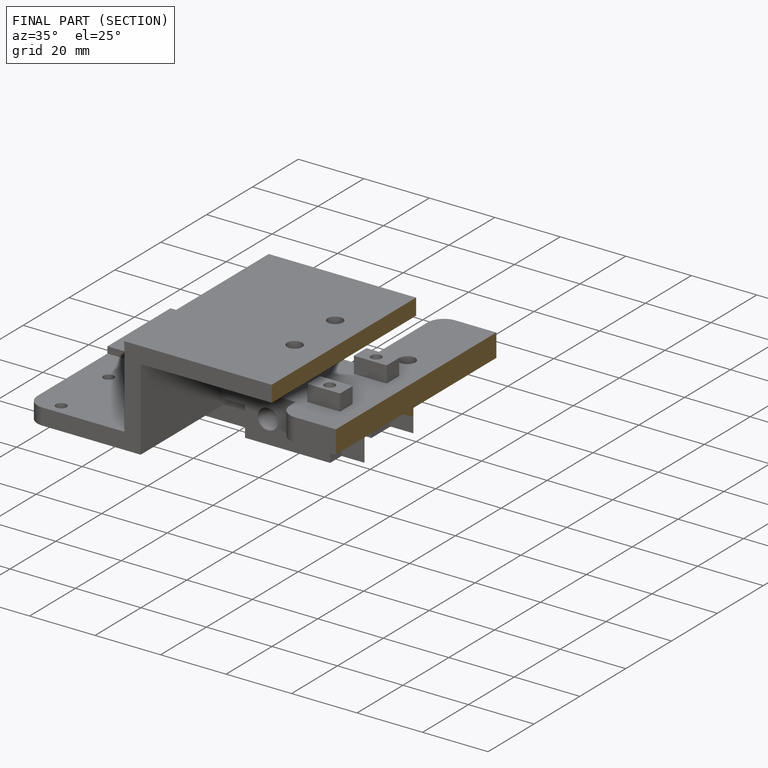
[diagram: finished part — half-section view (interior)]
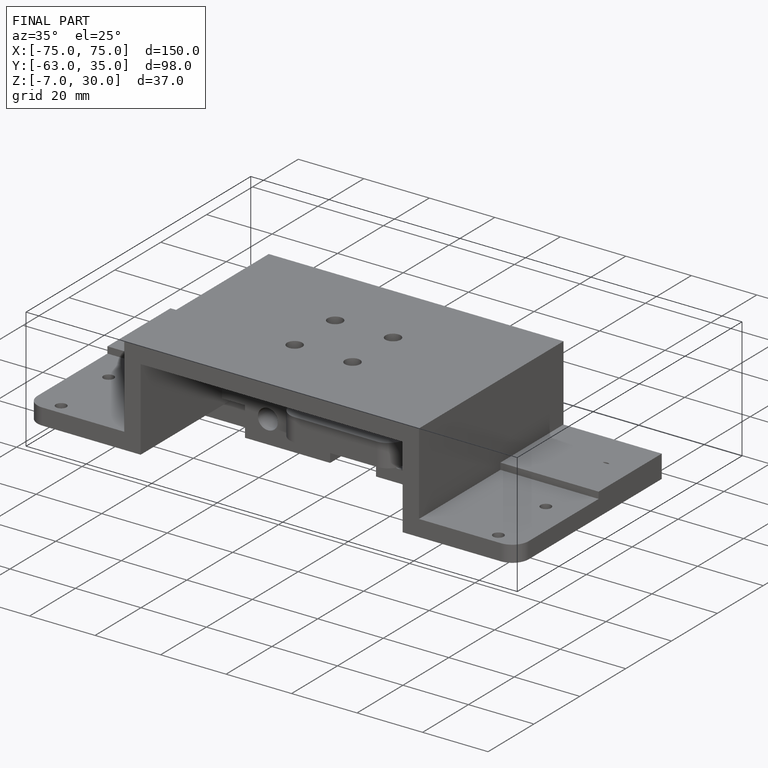
[diagram: finished part — iso view with bounding-box wireframe]
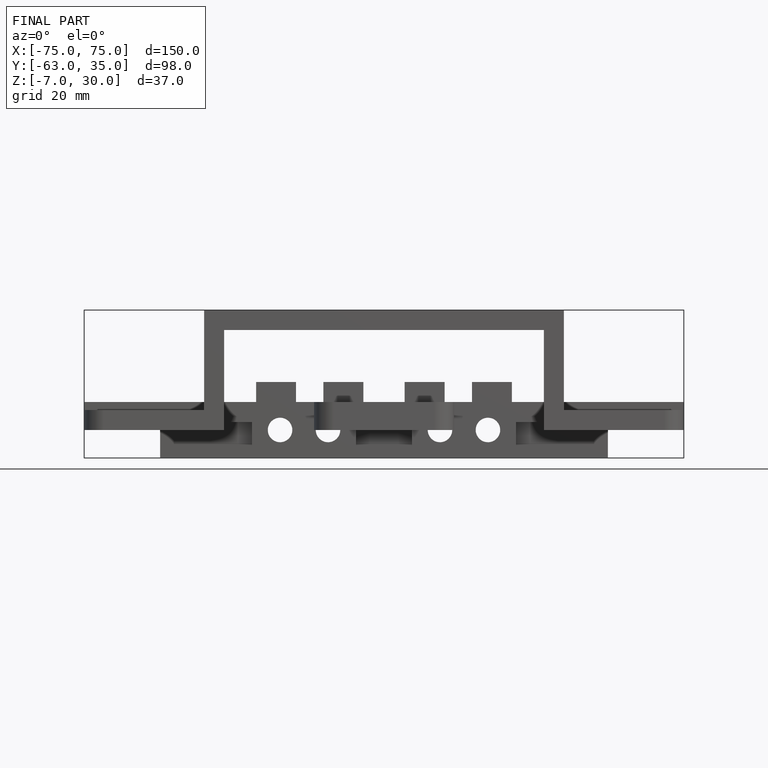
[diagram: finished part — front view with bounding-box wireframe]
